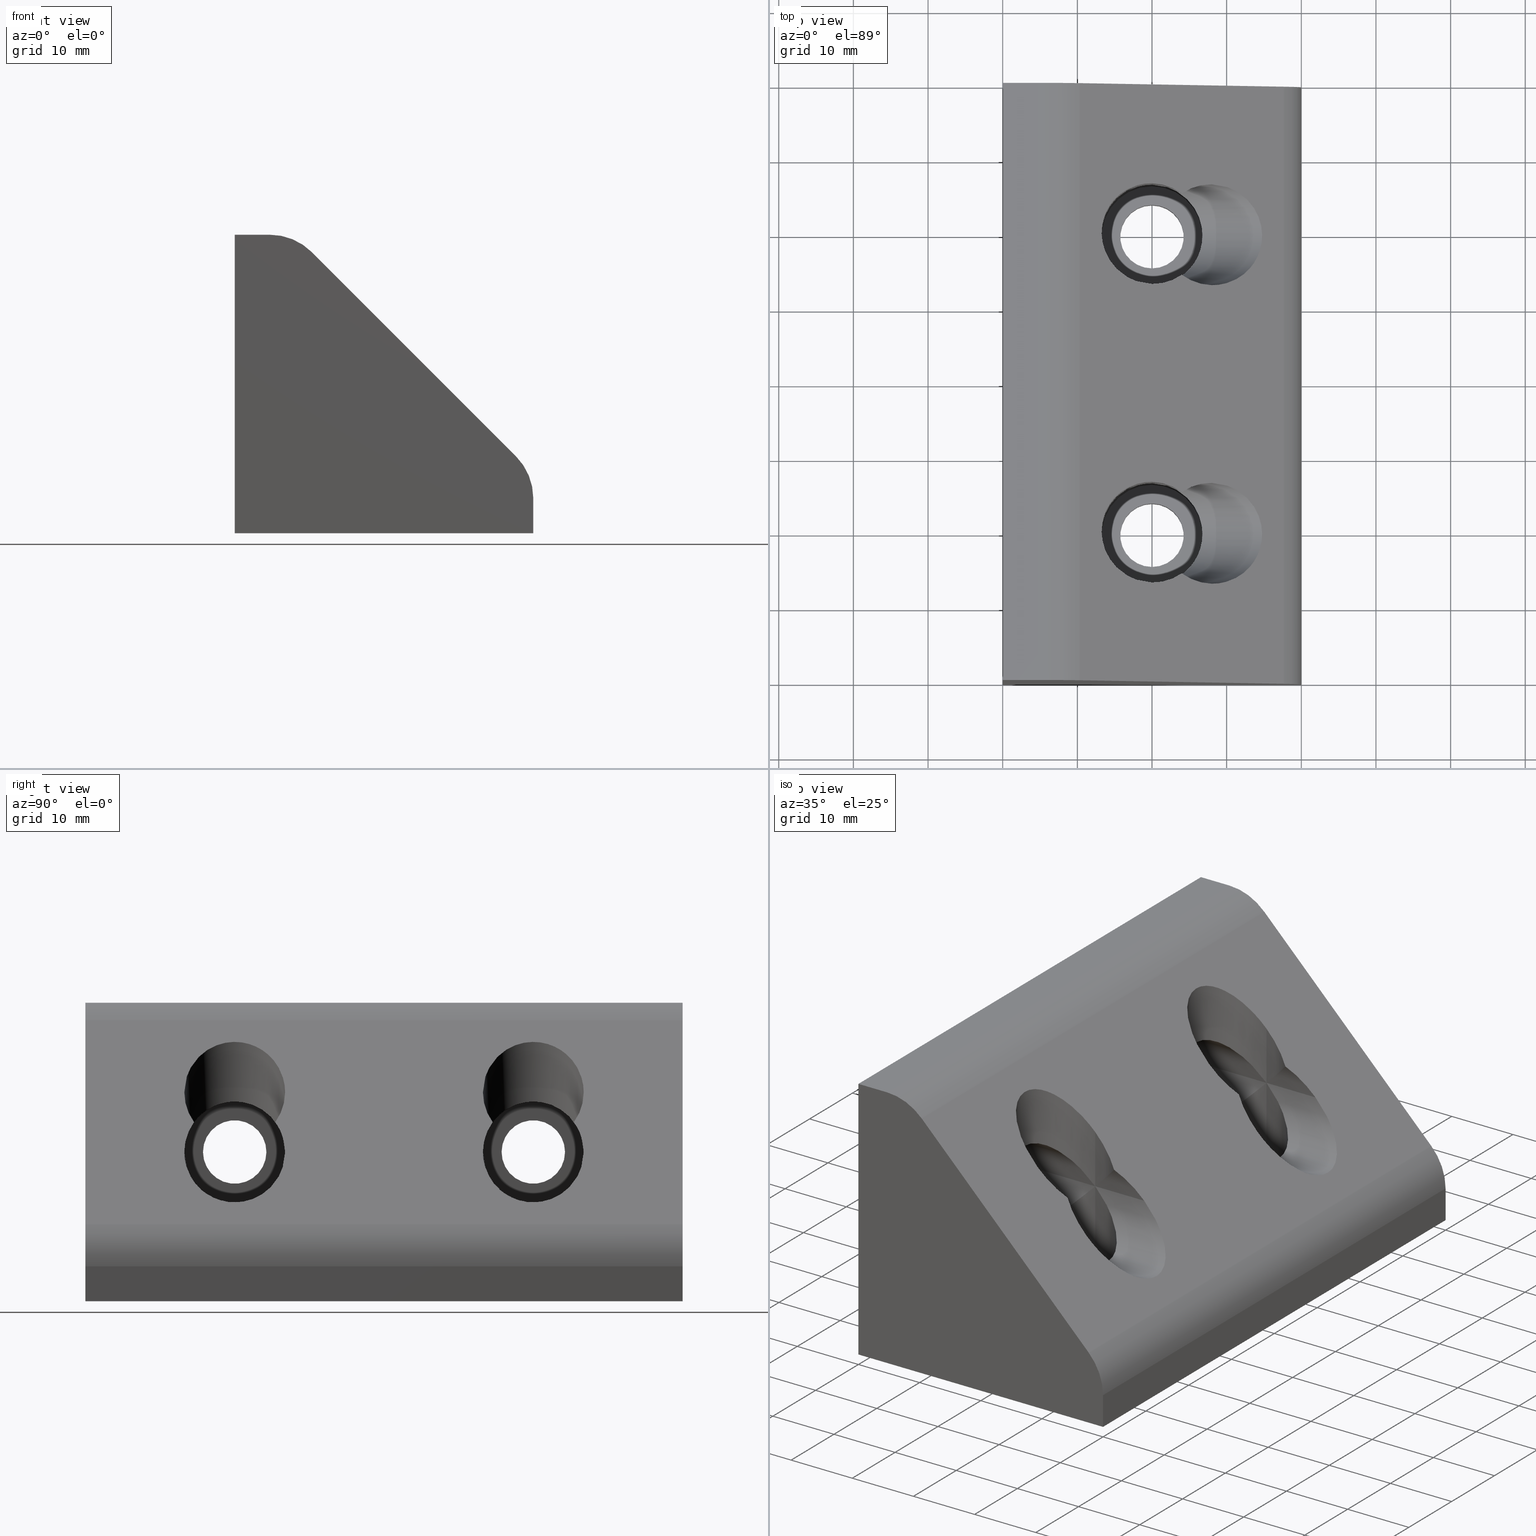
[diagram: canonical four-view strip — front | top / right | iso, engineering-drawing reading convention]
A machine part, canonical four-view strip (front | top / right | iso — engineering-drawing reading convention). The complete STEP part file that produces these views, byte-faithful:
ISO-10303-21;
HEADER;
/****************************************************************
 * Generated by software with PDE/Lib inside                    *
 * PDElib Version v4.4, created Mon 02/23/2004                  *
 * International Technegroup Inc. (www.iti-oh.com)              *
 ****************************************************************/
FILE_DESCRIPTION(('STEP AP203'),'2;1');
FILE_NAME('30.004.00.stp','2011-02-14T10:52:58',(''),(''),'2009.3.110','THINKDESIGN','');
FILE_SCHEMA(('CONFIG_CONTROL_DESIGN'));
ENDSEC;
DATA;
#2=CARTESIAN_POINT('',(20.0,20.0,20.000000009999997));
#3=DIRECTION('',(0.0,-6.123234E-017,-1.0));
#4=DIRECTION('',(-1.0,1.224647E-016,-7.498799E-033));
#5=AXIS2_PLACEMENT_3D('',#2,#3,#4);
#6=CYLINDRICAL_SURFACE('',#5,6.749999999999997);
#7=CARTESIAN_POINT('',(20.0,26.749999999999996,20.0));
#8=VERTEX_POINT('',#7);
#9=CARTESIAN_POINT('',(19.999999999999996,13.250000000000000,20.0));
#10=VERTEX_POINT('',#9);
#11=CARTESIAN_POINT('',(20.0,26.749999999999996,20.0));
#12=CARTESIAN_POINT('',(33.500000000000000,26.749999999999968,6.499999999999999));
#13=CARTESIAN_POINT('',(33.500000000000000,13.250000000000027,6.499999999999999));
#14=CARTESIAN_POINT('',(19.999999999999996,13.250000000000000,20.0));
#22=(BOUNDED_CURVE()B_SPLINE_CURVE(3,(#11,#12,#13,#14),.UNSPECIFIED.,.F.,.U.)B_SPLINE_CURVE_WITH_KNOTS((4,4),(1.570796326794897,4.712388980384691),.UNSPECIFIED.)CURVE()GEOMETRIC_REPRESENTATION_ITEM()RATIONAL_B_SPLINE_CURVE((1.0,0.333333333333333,0.333333333333333,1.0))REPRESENTATION_ITEM(''));
#23=EDGE_CURVE('',#8,#10,#22,.T.);
#24=ORIENTED_EDGE('',*,*,#23,.F.);
#25=CARTESIAN_POINT('',(20.0,26.749999999999996,4.999999999999998));
#26=VERTEX_POINT('',#25);
#27=CARTESIAN_POINT('',(20.0,26.749999999999996,20.0));
#28=DIRECTION('',(0.0,0.0,-1.0));
#29=VECTOR('',#28,15.0);
#30=LINE('',#27,#29);
#31=EDGE_CURVE('',#8,#26,#30,.T.);
#32=ORIENTED_EDGE('',*,*,#31,.T.);
#33=CARTESIAN_POINT('',(19.999999999999996,13.249999999999998,4.999999999999999));
#34=VERTEX_POINT('',#33);
#35=CARTESIAN_POINT('',(20.0,19.999999999999996,4.999999999999999));
#36=DIRECTION('',(0.0,6.123234E-017,1.0));
#37=DIRECTION('',(-1.224647E-016,-1.0,6.123234E-017));
#38=AXIS2_PLACEMENT_3D('',#35,#36,#37);
#39=CIRCLE('',#38,6.749999999999997);
#40=EDGE_CURVE('',#34,#26,#39,.T.);
#41=ORIENTED_EDGE('',*,*,#40,.F.);
#42=CARTESIAN_POINT('',(19.999999999999996,13.250000000000000,20.0));
#43=DIRECTION('',(0.0,0.0,-1.0));
#44=VECTOR('',#43,15.0);
#45=LINE('',#42,#44);
#46=EDGE_CURVE('',#10,#34,#45,.T.);
#47=ORIENTED_EDGE('',*,*,#46,.F.);
#48=EDGE_LOOP('',(#24,#32,#41,#47));
#49=FACE_OUTER_BOUND('',#48,.T.);
#50=ADVANCED_FACE('',(#49),#6,.F.);
#51=CARTESIAN_POINT('',(19.999999999999993,19.999999999999996,-9.999994E-009));
#52=DIRECTION('',(0.0,6.123234E-017,1.0));
#53=DIRECTION('',(-1.0,1.224647E-016,-7.498799E-033));
#54=AXIS2_PLACEMENT_3D('',#51,#52,#53);
#55=CYLINDRICAL_SURFACE('',#54,4.250000000000004);
#56=CARTESIAN_POINT('',(20.0,15.749999999999977,-9.644094E-016));
#57=VERTEX_POINT('',#56);
#58=CARTESIAN_POINT('',(20.0,24.249999999999996,-1.484884E-015));
#59=VERTEX_POINT('',#58);
#60=CARTESIAN_POINT('',(20.0,19.999999999999996,-1.224647E-015));
#61=DIRECTION('',(0.0,6.123234E-017,1.0));
#62=DIRECTION('',(1.224647E-016,1.0,-6.123234E-017));
#63=AXIS2_PLACEMENT_3D('',#60,#61,#62);
#64=CIRCLE('',#63,4.250000000000004);
#65=EDGE_CURVE('',#57,#59,#64,.T.);
#66=ORIENTED_EDGE('',*,*,#65,.F.);
#67=CARTESIAN_POINT('',(20.0,15.749999999999977,5.000000000000013));
#68=VERTEX_POINT('',#67);
#69=CARTESIAN_POINT('',(20.0,15.749999999999977,-9.644094E-016));
#70=DIRECTION('',(0.0,0.0,1.0));
#71=VECTOR('',#70,5.000000000000014);
#72=LINE('',#69,#71);
#73=EDGE_CURVE('',#57,#68,#72,.T.);
#74=ORIENTED_EDGE('',*,*,#73,.T.);
#75=CARTESIAN_POINT('',(20.0,24.249999999999996,5.000000000000012));
#76=VERTEX_POINT('',#75);
#77=CARTESIAN_POINT('',(20.0,19.999999999999996,5.000000000000013));
#78=DIRECTION('',(0.0,6.123234E-017,1.0));
#79=DIRECTION('',(-1.224647E-016,-1.0,6.123234E-017));
#80=AXIS2_PLACEMENT_3D('',#77,#78,#79);
#81=CIRCLE('',#80,4.250000000000004);
#82=EDGE_CURVE('',#68,#76,#81,.T.);
#83=ORIENTED_EDGE('',*,*,#82,.T.);
#84=CARTESIAN_POINT('',(20.0,24.249999999999996,-1.484884E-015));
#85=DIRECTION('',(0.0,0.0,1.0));
#86=VECTOR('',#85,5.000000000000014);
#87=LINE('',#84,#86);
#88=EDGE_CURVE('',#59,#76,#87,.T.);
#89=ORIENTED_EDGE('',*,*,#88,.F.);
#90=EDGE_LOOP('',(#66,#74,#83,#89));
#91=FACE_OUTER_BOUND('',#90,.T.);
#92=ADVANCED_FACE('',(#91),#55,.F.);
#93=CARTESIAN_POINT('',(19.999999999999993,-20.000000000000007,20.000000010000015));
#94=DIRECTION('',(0.0,-6.123234E-017,-1.0));
#95=DIRECTION('',(-1.0,1.224647E-016,-7.498799E-033));
#96=AXIS2_PLACEMENT_3D('',#93,#94,#95);
#97=CYLINDRICAL_SURFACE('',#96,6.749999999999997);
#98=CARTESIAN_POINT('',(19.999999999999996,-13.250000000000000,20.000000000000018));
#99=VERTEX_POINT('',#98);
#100=CARTESIAN_POINT('',(19.999999999999993,-26.750000000000011,20.000000000000018));
#101=VERTEX_POINT('',#100);
#102=CARTESIAN_POINT('',(19.999999999999996,-13.250000000000000,20.000000000000018));
#103=CARTESIAN_POINT('',(33.500000000000000,-13.250000000000005,6.500000000000015));
#104=CARTESIAN_POINT('',(33.500000000000000,-26.750000000000007,6.500000000000016));
#105=CARTESIAN_POINT('',(19.999999999999993,-26.750000000000011,20.000000000000018));
#113=(BOUNDED_CURVE()B_SPLINE_CURVE(3,(#102,#103,#104,#105),.UNSPECIFIED.,.F.,.U.)B_SPLINE_CURVE_WITH_KNOTS((4,4),(1.570796326794897,4.712388980384691),.UNSPECIFIED.)CURVE()GEOMETRIC_REPRESENTATION_ITEM()RATIONAL_B_SPLINE_CURVE((1.0,0.333333333333333,0.333333333333333,1.0))REPRESENTATION_ITEM(''));
#114=EDGE_CURVE('',#99,#101,#113,.T.);
#115=ORIENTED_EDGE('',*,*,#114,.F.);
#116=CARTESIAN_POINT('',(19.999999999999996,-13.250000000000002,5.000000000000001));
#117=VERTEX_POINT('',#116);
#118=CARTESIAN_POINT('',(19.999999999999996,-13.250000000000011,20.000000000000018));
#119=DIRECTION('',(0.0,0.0,-1.0));
#120=VECTOR('',#119,15.000000000000018);
#121=LINE('',#118,#120);
#122=EDGE_CURVE('',#99,#117,#121,.T.);
#123=ORIENTED_EDGE('',*,*,#122,.T.);
#124=CARTESIAN_POINT('',(19.999999999999993,-26.750000000000011,5.000000000000002));
#125=VERTEX_POINT('',#124);
#126=CARTESIAN_POINT('',(19.999999999999993,-20.000000000000011,5.000000000000001));
#127=DIRECTION('',(0.0,6.123234E-017,1.0));
#128=DIRECTION('',(-1.224647E-016,-1.0,6.123234E-017));
#129=AXIS2_PLACEMENT_3D('',#126,#127,#128);
#130=CIRCLE('',#129,6.749999999999997);
#131=EDGE_CURVE('',#125,#117,#130,.T.);
#132=ORIENTED_EDGE('',*,*,#131,.F.);
#133=CARTESIAN_POINT('',(19.999999999999993,-26.750000000000011,20.000000000000018));
#134=DIRECTION('',(0.0,0.0,-1.0));
#135=VECTOR('',#134,15.000000000000018);
#136=LINE('',#133,#135);
#137=EDGE_CURVE('',#101,#125,#136,.T.);
#138=ORIENTED_EDGE('',*,*,#137,.F.);
#139=EDGE_LOOP('',(#115,#123,#132,#138));
#140=FACE_OUTER_BOUND('',#139,.T.);
#141=ADVANCED_FACE('',(#140),#97,.F.);
#142=CARTESIAN_POINT('',(20.0,-20.000000000000011,-9.999994E-009));
#143=DIRECTION('',(0.0,6.123234E-017,1.0));
#144=DIRECTION('',(-1.0,1.224647E-016,-7.498799E-033));
#145=AXIS2_PLACEMENT_3D('',#142,#143,#144);
#146=CYLINDRICAL_SURFACE('',#145,4.250000000000000);
#147=CARTESIAN_POINT('',(19.999999999999993,-24.250000000000011,1.484884E-015));
#148=VERTEX_POINT('',#147);
#149=CARTESIAN_POINT('',(19.999999999999993,-15.750000000000009,9.644094E-016));
#150=VERTEX_POINT('',#149);
#151=CARTESIAN_POINT('',(19.999999999999993,-20.000000000000011,1.224647E-015));
#152=DIRECTION('',(0.0,6.123234E-017,1.0));
#153=DIRECTION('',(1.224647E-016,1.0,-6.123234E-017));
#154=AXIS2_PLACEMENT_3D('',#151,#152,#153);
#155=CIRCLE('',#154,4.250000000000000);
#156=EDGE_CURVE('',#148,#150,#155,.T.);
#157=ORIENTED_EDGE('',*,*,#156,.F.);
#158=CARTESIAN_POINT('',(19.999999999999993,-24.250000000000011,5.000000000000016));
#159=VERTEX_POINT('',#158);
#160=CARTESIAN_POINT('',(19.999999999999993,-24.250000000000011,1.484884E-015));
#161=DIRECTION('',(0.0,0.0,1.0));
#162=VECTOR('',#161,5.000000000000014);
#163=LINE('',#160,#162);
#164=EDGE_CURVE('',#148,#159,#163,.T.);
#165=ORIENTED_EDGE('',*,*,#164,.T.);
#166=CARTESIAN_POINT('',(19.999999999999993,-15.750000000000009,5.000000000000015));
#167=VERTEX_POINT('',#166);
#168=CARTESIAN_POINT('',(19.999999999999993,-20.000000000000011,5.000000000000015));
#169=DIRECTION('',(0.0,6.123234E-017,1.0));
#170=DIRECTION('',(-1.224647E-016,-1.0,6.123234E-017));
#171=AXIS2_PLACEMENT_3D('',#168,#169,#170);
#172=CIRCLE('',#171,4.250000000000000);
#173=EDGE_CURVE('',#159,#167,#172,.T.);
#174=ORIENTED_EDGE('',*,*,#173,.T.);
#175=CARTESIAN_POINT('',(19.999999999999993,-15.750000000000009,9.644094E-016));
#176=DIRECTION('',(0.0,0.0,1.0));
#177=VECTOR('',#176,5.000000000000014);
#178=LINE('',#175,#177);
#179=EDGE_CURVE('',#150,#167,#178,.T.);
#180=ORIENTED_EDGE('',*,*,#179,.F.);
#181=EDGE_LOOP('',(#157,#165,#174,#180));
#182=FACE_OUTER_BOUND('',#181,.T.);
#183=ADVANCED_FACE('',(#182),#146,.F.);
#184=CARTESIAN_POINT('',(-9.999994E-009,-20.0,20.000000000000014));
#185=DIRECTION('',(1.0,-1.224647E-016,7.498799E-033));
#186=DIRECTION('',(0.0,6.123234E-017,1.0));
#187=AXIS2_PLACEMENT_3D('',#184,#185,#186);
#188=CYLINDRICAL_SURFACE('',#187,4.250000000000000);
#189=CARTESIAN_POINT('',(-2.969768E-015,-24.250000000000000,20.000000000000018));
#190=VERTEX_POINT('',#189);
#191=CARTESIAN_POINT('',(-1.928819E-015,-15.749999999999998,20.000000000000018));
#192=VERTEX_POINT('',#191);
#193=CARTESIAN_POINT('',(-2.449294E-015,-20.0,20.000000000000018));
#194=DIRECTION('',(1.0,-1.224647E-016,7.498799E-033));
#195=DIRECTION('',(1.224647E-016,1.0,-6.123234E-017));
#196=AXIS2_PLACEMENT_3D('',#193,#194,#195);
#197=CIRCLE('',#196,4.250000000000000);
#198=EDGE_CURVE('',#190,#192,#197,.T.);
#199=ORIENTED_EDGE('',*,*,#198,.F.);
#200=CARTESIAN_POINT('',(4.999999999999997,-24.250000000000000,20.000000000000018));
#201=VERTEX_POINT('',#200);
#202=CARTESIAN_POINT('',(5.829452E-016,-24.250000000000000,20.000000000000018));
#203=DIRECTION('',(1.0,0.0,0.0));
#204=VECTOR('',#203,4.999999999999996);
#205=LINE('',#202,#204);
#206=EDGE_CURVE('',#190,#201,#205,.T.);
#207=ORIENTED_EDGE('',*,*,#206,.T.);
#208=CARTESIAN_POINT('',(4.999999999999998,-15.749999999999998,20.000000000000018));
#209=VERTEX_POINT('',#208);
#210=CARTESIAN_POINT('',(4.999999999999997,-20.0,20.000000000000018));
#211=DIRECTION('',(1.0,-1.224647E-016,7.498799E-033));
#212=DIRECTION('',(-1.224647E-016,-1.0,6.123234E-017));
#213=AXIS2_PLACEMENT_3D('',#210,#211,#212);
#214=CIRCLE('',#213,4.250000000000000);
#215=EDGE_CURVE('',#201,#209,#214,.T.);
#216=ORIENTED_EDGE('',*,*,#215,.T.);
#217=CARTESIAN_POINT('',(1.623895E-015,-15.749999999999998,20.000000000000018));
#218=DIRECTION('',(1.0,0.0,0.0));
#219=VECTOR('',#218,4.999999999999996);
#220=LINE('',#217,#219);
#221=EDGE_CURVE('',#192,#209,#220,.T.);
#222=ORIENTED_EDGE('',*,*,#221,.F.);
#223=EDGE_LOOP('',(#199,#207,#216,#222));
#224=FACE_OUTER_BOUND('',#223,.T.);
#225=ADVANCED_FACE('',(#224),#188,.F.);
#226=CARTESIAN_POINT('',(-0.000000010000008,20.0,20.0));
#227=DIRECTION('',(1.0,-1.224647E-016,7.498799E-033));
#228=DIRECTION('',(0.0,6.123234E-017,1.0));
#229=AXIS2_PLACEMENT_3D('',#226,#227,#228);
#230=CYLINDRICAL_SURFACE('',#229,4.250000000000004);
#231=CARTESIAN_POINT('',(-1.623895E-015,15.749999999999980,20.0));
#232=VERTEX_POINT('',#231);
#233=CARTESIAN_POINT('',(-5.829452E-016,24.250000000000000,20.0));
#234=VERTEX_POINT('',#233);
#235=CARTESIAN_POINT('',(-1.103420E-015,20.0,20.0));
#236=DIRECTION('',(1.0,-1.224647E-016,7.498799E-033));
#237=DIRECTION('',(1.224647E-016,1.0,-6.123234E-017));
#238=AXIS2_PLACEMENT_3D('',#235,#236,#237);
#239=CIRCLE('',#238,4.250000000000004);
#240=EDGE_CURVE('',#232,#234,#239,.T.);
#241=ORIENTED_EDGE('',*,*,#240,.F.);
#242=CARTESIAN_POINT('',(5.000000000000002,15.749999999999980,20.0));
#243=VERTEX_POINT('',#242);
#244=CARTESIAN_POINT('',(-8.729322E-015,15.749999999999980,20.0));
#245=DIRECTION('',(1.0,0.0,0.0));
#246=VECTOR('',#245,5.000000000000011);
#247=LINE('',#244,#246);
#248=EDGE_CURVE('',#232,#243,#247,.T.);
#249=ORIENTED_EDGE('',*,*,#248,.T.);
#250=CARTESIAN_POINT('',(5.000000000000003,24.250000000000000,20.0));
#251=VERTEX_POINT('',#250);
#252=CARTESIAN_POINT('',(5.000000000000003,20.0,20.0));
#253=DIRECTION('',(1.0,-1.224647E-016,7.498799E-033));
#254=DIRECTION('',(-1.224647E-016,-1.0,6.123234E-017));
#255=AXIS2_PLACEMENT_3D('',#252,#253,#254);
#256=CIRCLE('',#255,4.250000000000004);
#257=EDGE_CURVE('',#243,#251,#256,.T.);
#258=ORIENTED_EDGE('',*,*,#257,.T.);
#259=CARTESIAN_POINT('',(-7.688373E-015,24.250000000000000,20.0));
#260=DIRECTION('',(1.0,0.0,0.0));
#261=VECTOR('',#260,5.000000000000011);
#262=LINE('',#259,#261);
#263=EDGE_CURVE('',#234,#251,#262,.T.);
#264=ORIENTED_EDGE('',*,*,#263,.F.);
#265=EDGE_LOOP('',(#241,#249,#258,#264));
#266=FACE_OUTER_BOUND('',#265,.T.);
#267=ADVANCED_FACE('',(#266),#230,.F.);
#268=CARTESIAN_POINT('',(20.000000009999994,-19.999999999999996,20.000000000000018));
#269=DIRECTION('',(-1.0,1.224647E-016,-7.498799E-033));
#270=DIRECTION('',(0.0,-6.123234E-017,-1.0));
#271=AXIS2_PLACEMENT_3D('',#268,#269,#270);
#272=CYLINDRICAL_SURFACE('',#271,6.749999999999997);
#273=CARTESIAN_POINT('',(19.999999999999996,-13.250000000000000,20.000000000000018));
#274=CARTESIAN_POINT('',(6.500000000000002,-13.249999999999989,33.500000000000007));
#275=CARTESIAN_POINT('',(6.500000000000000,-26.749999999999996,33.500000000000007));
#276=CARTESIAN_POINT('',(19.999999999999993,-26.750000000000011,20.000000000000018));
#284=(BOUNDED_CURVE()B_SPLINE_CURVE(3,(#273,#274,#275,#276),.UNSPECIFIED.,.F.,.U.)B_SPLINE_CURVE_WITH_KNOTS((4,4),(4.712388980384691,7.853981633974483),.UNSPECIFIED.)CURVE()GEOMETRIC_REPRESENTATION_ITEM()RATIONAL_B_SPLINE_CURVE((1.0,0.333333333333333,0.333333333333333,1.0))REPRESENTATION_ITEM(''));
#285=EDGE_CURVE('',#99,#101,#284,.T.);
#286=ORIENTED_EDGE('',*,*,#285,.T.);
#287=CARTESIAN_POINT('',(4.999999999999996,-26.750000000000000,20.000000000000018));
#288=VERTEX_POINT('',#287);
#289=CARTESIAN_POINT('',(19.999999999999993,-26.749999999999996,20.000000000000018));
#290=DIRECTION('',(-1.0,0.0,0.0));
#291=VECTOR('',#290,14.999999999999996);
#292=LINE('',#289,#291);
#293=EDGE_CURVE('',#101,#288,#292,.T.);
#294=ORIENTED_EDGE('',*,*,#293,.T.);
#295=CARTESIAN_POINT('',(4.999999999999998,-13.249999999999998,20.000000000000018));
#296=VERTEX_POINT('',#295);
#297=CARTESIAN_POINT('',(4.999999999999997,-20.0,20.000000000000018));
#298=DIRECTION('',(1.0,-1.224647E-016,7.498799E-033));
#299=DIRECTION('',(1.224647E-016,1.0,-6.123234E-017));
#300=AXIS2_PLACEMENT_3D('',#297,#298,#299);
#301=CIRCLE('',#300,6.749999999999997);
#302=EDGE_CURVE('',#296,#288,#301,.T.);
#303=ORIENTED_EDGE('',*,*,#302,.F.);
#304=CARTESIAN_POINT('',(19.999999999999996,-13.250000000000000,20.000000000000018));
#305=DIRECTION('',(-1.0,0.0,0.0));
#306=VECTOR('',#305,14.999999999999996);
#307=LINE('',#304,#306);
#308=EDGE_CURVE('',#99,#296,#307,.T.);
#309=ORIENTED_EDGE('',*,*,#308,.F.);
#310=EDGE_LOOP('',(#286,#294,#303,#309));
#311=FACE_OUTER_BOUND('',#310,.T.);
#312=ADVANCED_FACE('',(#311),#272,.F.);
#313=CARTESIAN_POINT('',(20.000000009999994,20.0,20.0));
#314=DIRECTION('',(-1.0,1.224647E-016,-7.498799E-033));
#315=DIRECTION('',(0.0,-6.123234E-017,-1.0));
#316=AXIS2_PLACEMENT_3D('',#313,#314,#315);
#317=CYLINDRICAL_SURFACE('',#316,6.750000000000005);
#318=CARTESIAN_POINT('',(20.0,26.749999999999996,20.0));
#319=CARTESIAN_POINT('',(6.500000000000007,26.749999999999975,33.500000000000000));
#320=CARTESIAN_POINT('',(6.500000000000005,13.250000000000032,33.500000000000000));
#321=CARTESIAN_POINT('',(19.999999999999996,13.250000000000000,20.0));
#329=(BOUNDED_CURVE()B_SPLINE_CURVE(3,(#318,#319,#320,#321),.UNSPECIFIED.,.F.,.U.)B_SPLINE_CURVE_WITH_KNOTS((4,4),(4.712388980384691,7.853981633974483),.UNSPECIFIED.)CURVE()GEOMETRIC_REPRESENTATION_ITEM()RATIONAL_B_SPLINE_CURVE((1.0,0.333333333333333,0.333333333333333,1.0))REPRESENTATION_ITEM(''));
#330=EDGE_CURVE('',#8,#10,#329,.T.);
#331=ORIENTED_EDGE('',*,*,#330,.T.);
#332=CARTESIAN_POINT('',(5.000000000000002,13.250000000000002,20.0));
#333=VERTEX_POINT('',#332);
#334=CARTESIAN_POINT('',(19.999999999999996,13.250000000000000,20.0));
#335=DIRECTION('',(-1.0,0.0,0.0));
#336=VECTOR('',#335,14.999999999999996);
#337=LINE('',#334,#336);
#338=EDGE_CURVE('',#10,#333,#337,.T.);
#339=ORIENTED_EDGE('',*,*,#338,.T.);
#340=CARTESIAN_POINT('',(5.000000000000004,26.750000000000000,20.0));
#341=VERTEX_POINT('',#340);
#342=CARTESIAN_POINT('',(5.000000000000003,20.0,20.0));
#343=DIRECTION('',(1.0,-1.224647E-016,7.498799E-033));
#344=DIRECTION('',(1.224647E-016,1.0,-6.123234E-017));
#345=AXIS2_PLACEMENT_3D('',#342,#343,#344);
#346=CIRCLE('',#345,6.750000000000005);
#347=EDGE_CURVE('',#341,#333,#346,.T.);
#348=ORIENTED_EDGE('',*,*,#347,.F.);
#349=CARTESIAN_POINT('',(20.0,26.749999999999996,20.0));
#350=DIRECTION('',(-1.0,0.0,0.0));
#351=VECTOR('',#350,14.999999999999996);
#352=LINE('',#349,#351);
#353=EDGE_CURVE('',#8,#341,#352,.T.);
#354=ORIENTED_EDGE('',*,*,#353,.F.);
#355=EDGE_LOOP('',(#331,#339,#348,#354));
#356=FACE_OUTER_BOUND('',#355,.T.);
#357=ADVANCED_FACE('',(#356),#317,.F.);
#358=CARTESIAN_POINT('',(20.0,20.0,28.000000010000008));
#359=DIRECTION('',(0.0,-6.123234E-017,-1.0));
#360=DIRECTION('',(-1.224647E-016,-1.0,6.123234E-017));
#361=AXIS2_PLACEMENT_3D('',#358,#359,#360);
#362=CYLINDRICAL_SURFACE('',#361,6.749999999999997);
#363=CARTESIAN_POINT('',(20.0,26.749999999999996,28.000000000000011));
#364=VERTEX_POINT('',#363);
#365=CARTESIAN_POINT('',(24.0,25.437140792732887,24.000000000000007));
#366=VERTEX_POINT('',#365);
#367=CARTESIAN_POINT('',(20.0,26.749999999999996,28.000000000000011));
#368=CARTESIAN_POINT('',(21.451571303647832,26.749999999999968,26.548428696352186));
#369=CARTESIAN_POINT('',(22.830755918722367,26.297331194894536,25.169244081277650));
#370=CARTESIAN_POINT('',(24.0,25.437140792732887,24.000000000000007));
#378=(BOUNDED_CURVE()B_SPLINE_CURVE(3,(#367,#368,#369,#370),.UNSPECIFIED.,.F.,.U.)B_SPLINE_CURVE_WITH_KNOTS((4,4),(4.712388980384691,5.346662628507185),.UNSPECIFIED.)CURVE()GEOMETRIC_REPRESENTATION_ITEM()RATIONAL_B_SPLINE_CURVE((1.0,0.966754790301429,0.966754790301429,1.0))REPRESENTATION_ITEM(''));
#379=EDGE_CURVE('',#364,#366,#378,.T.);
#380=ORIENTED_EDGE('',*,*,#379,.F.);
#381=CARTESIAN_POINT('',(20.0,26.749999999999996,28.000000000000011));
#382=DIRECTION('',(0.0,0.0,-1.0));
#383=VECTOR('',#382,8.000000000000011);
#384=LINE('',#381,#383);
#385=EDGE_CURVE('',#364,#8,#384,.T.);
#386=ORIENTED_EDGE('',*,*,#385,.T.);
#387=CARTESIAN_POINT('',(24.0,25.437140792732887,24.000000000000007));
#388=CARTESIAN_POINT('',(22.830755918722367,26.297331194894536,22.830755918722371));
#389=CARTESIAN_POINT('',(21.451571303647832,26.749999999999968,21.451571303647839));
#390=CARTESIAN_POINT('',(20.0,26.749999999999996,20.0));
#398=(BOUNDED_CURVE()B_SPLINE_CURVE(3,(#387,#388,#389,#390),.UNSPECIFIED.,.F.,.U.)B_SPLINE_CURVE_WITH_KNOTS((4,4),(4.078115332262193,4.712388980384691),.UNSPECIFIED.)CURVE()GEOMETRIC_REPRESENTATION_ITEM()RATIONAL_B_SPLINE_CURVE((1.0,0.966754790301428,0.966754790301428,1.0))REPRESENTATION_ITEM(''));
#399=EDGE_CURVE('',#366,#8,#398,.T.);
#400=ORIENTED_EDGE('',*,*,#399,.F.);
#401=EDGE_LOOP('',(#380,#386,#400));
#402=FACE_OUTER_BOUND('',#401,.T.);
#403=ADVANCED_FACE('',(#402),#362,.F.);
#404=CARTESIAN_POINT('',(19.999999999999993,20.0,34.750008955876353));
#405=DIRECTION('',(0.0,-6.123234E-017,-1.0));
#406=DIRECTION('',(1.0,-1.224647E-016,7.498799E-033));
#407=AXIS2_PLACEMENT_3D('',#404,#405,#406);
#408=CYLINDRICAL_SURFACE('',#407,6.749999999999997);
#409=ORIENTED_EDGE('',*,*,#385,.F.);
#410=CARTESIAN_POINT('',(19.999999999999996,13.250000000000000,28.000000000000011));
#411=VERTEX_POINT('',#410);
#412=CARTESIAN_POINT('',(19.999999999999996,13.250000000000000,28.000000000000011));
#413=CARTESIAN_POINT('',(6.500000000000005,13.250000000000032,41.500000000000021));
#414=CARTESIAN_POINT('',(6.500000000000007,26.750000000000007,41.500000000000021));
#415=CARTESIAN_POINT('',(20.0,26.749999999999996,28.000000000000011));
#423=(BOUNDED_CURVE()B_SPLINE_CURVE(3,(#412,#413,#414,#415),.UNSPECIFIED.,.F.,.U.)B_SPLINE_CURVE_WITH_KNOTS((4,4),(1.570796326794897,4.712388980384691),.UNSPECIFIED.)CURVE()GEOMETRIC_REPRESENTATION_ITEM()RATIONAL_B_SPLINE_CURVE((1.0,0.333333333333333,0.333333333333333,1.0))REPRESENTATION_ITEM(''));
#424=EDGE_CURVE('',#411,#364,#423,.T.);
#425=ORIENTED_EDGE('',*,*,#424,.F.);
#426=CARTESIAN_POINT('',(19.999999999999996,13.250000000000000,28.000000000000011));
#427=DIRECTION('',(0.0,0.0,-1.0));
#428=VECTOR('',#427,8.000000000000011);
#429=LINE('',#426,#428);
#430=EDGE_CURVE('',#411,#10,#429,.T.);
#431=ORIENTED_EDGE('',*,*,#430,.T.);
#432=ORIENTED_EDGE('',*,*,#330,.F.);
#433=EDGE_LOOP('',(#409,#425,#431,#432));
#434=FACE_OUTER_BOUND('',#433,.T.);
#435=ADVANCED_FACE('',(#434),#408,.F.);
#436=CARTESIAN_POINT('',(19.999999999999993,-20.000000000000007,28.000000010000015));
#437=DIRECTION('',(0.0,-6.123234E-017,-1.0));
#438=DIRECTION('',(-1.224647E-016,-1.0,6.123234E-017));
#439=AXIS2_PLACEMENT_3D('',#436,#437,#438);
#440=CYLINDRICAL_SURFACE('',#439,6.749999999999997);
#441=CARTESIAN_POINT('',(19.999999999999996,-13.250000000000011,28.000000000000021));
#442=VERTEX_POINT('',#441);
#443=CARTESIAN_POINT('',(23.999999999999993,-14.562859207267122,24.000000000000011));
#444=VERTEX_POINT('',#443);
#445=CARTESIAN_POINT('',(19.999999999999996,-13.250000000000011,28.000000000000021));
#446=CARTESIAN_POINT('',(21.451571303647828,-13.250000000000011,26.548428696352186));
#447=CARTESIAN_POINT('',(22.830755918722357,-13.702668805105437,25.169244081277661));
#448=CARTESIAN_POINT('',(23.999999999999993,-14.562859207267122,24.000000000000011));
#456=(BOUNDED_CURVE()B_SPLINE_CURVE(3,(#445,#446,#447,#448),.UNSPECIFIED.,.F.,.U.)B_SPLINE_CURVE_WITH_KNOTS((4,4),(4.712388980384691,5.346662628507187),.UNSPECIFIED.)CURVE()GEOMETRIC_REPRESENTATION_ITEM()RATIONAL_B_SPLINE_CURVE((1.0,0.966754790301428,0.966754790301428,1.0))REPRESENTATION_ITEM(''));
#457=EDGE_CURVE('',#442,#444,#456,.T.);
#458=ORIENTED_EDGE('',*,*,#457,.F.);
#459=CARTESIAN_POINT('',(19.999999999999996,-13.250000000000011,28.000000000000021));
#460=DIRECTION('',(0.0,0.0,-1.0));
#461=VECTOR('',#460,8.0);
#462=LINE('',#459,#461);
#463=EDGE_CURVE('',#442,#99,#462,.T.);
#464=ORIENTED_EDGE('',*,*,#463,.T.);
#465=CARTESIAN_POINT('',(23.999999999999993,-14.562859207267122,24.000000000000011));
#466=CARTESIAN_POINT('',(22.830755918722364,-13.702668805105437,22.830755918722375));
#467=CARTESIAN_POINT('',(21.451571303647828,-13.250000000000000,21.451571303647846));
#468=CARTESIAN_POINT('',(19.999999999999996,-13.250000000000000,20.000000000000018));
#476=(BOUNDED_CURVE()B_SPLINE_CURVE(3,(#465,#466,#467,#468),.UNSPECIFIED.,.F.,.U.)B_SPLINE_CURVE_WITH_KNOTS((4,4),(4.078115332262193,4.712388980384691),.UNSPECIFIED.)CURVE()GEOMETRIC_REPRESENTATION_ITEM()RATIONAL_B_SPLINE_CURVE((1.0,0.966754790301428,0.966754790301428,1.0))REPRESENTATION_ITEM(''));
#477=EDGE_CURVE('',#444,#99,#476,.T.);
#478=ORIENTED_EDGE('',*,*,#477,.F.);
#479=EDGE_LOOP('',(#458,#464,#478));
#480=FACE_OUTER_BOUND('',#479,.T.);
#481=ADVANCED_FACE('',(#480),#440,.F.);
#482=CARTESIAN_POINT('',(20.0,-20.000000000000007,34.750008955876361));
#483=DIRECTION('',(0.0,-6.123234E-017,-1.0));
#484=DIRECTION('',(1.0,-1.224647E-016,7.498799E-033));
#485=AXIS2_PLACEMENT_3D('',#482,#483,#484);
#486=CYLINDRICAL_SURFACE('',#485,6.749999999999997);
#487=ORIENTED_EDGE('',*,*,#463,.F.);
#488=CARTESIAN_POINT('',(19.999999999999993,-26.750000000000011,28.000000000000021));
#489=VERTEX_POINT('',#488);
#490=CARTESIAN_POINT('',(19.999999999999993,-26.750000000000011,28.000000000000021));
#491=CARTESIAN_POINT('',(6.500000000000000,-26.750000000000007,41.500000000000028));
#492=CARTESIAN_POINT('',(6.500000000000002,-13.250000000000000,41.500000000000028));
#493=CARTESIAN_POINT('',(19.999999999999996,-13.250000000000011,28.000000000000021));
#501=(BOUNDED_CURVE()B_SPLINE_CURVE(3,(#490,#491,#492,#493),.UNSPECIFIED.,.F.,.U.)B_SPLINE_CURVE_WITH_KNOTS((4,4),(1.570796326794897,4.712388980384691),.UNSPECIFIED.)CURVE()GEOMETRIC_REPRESENTATION_ITEM()RATIONAL_B_SPLINE_CURVE((1.0,0.333333333333333,0.333333333333333,1.0))REPRESENTATION_ITEM(''));
#502=EDGE_CURVE('',#489,#442,#501,.T.);
#503=ORIENTED_EDGE('',*,*,#502,.F.);
#504=CARTESIAN_POINT('',(19.999999999999993,-26.750000000000011,28.000000000000021));
#505=DIRECTION('',(0.0,0.0,-1.0));
#506=VECTOR('',#505,8.0);
#507=LINE('',#504,#506);
#508=EDGE_CURVE('',#489,#101,#507,.T.);
#509=ORIENTED_EDGE('',*,*,#508,.T.);
#510=ORIENTED_EDGE('',*,*,#285,.F.);
#511=EDGE_LOOP('',(#487,#503,#509,#510));
#512=FACE_OUTER_BOUND('',#511,.T.);
#513=ADVANCED_FACE('',(#512),#486,.F.);
#514=CARTESIAN_POINT('',(28.000000010000001,-20.000000000000004,20.000000000000018));
#515=DIRECTION('',(-1.0,1.224647E-016,-7.498799E-033));
#516=DIRECTION('',(1.224647E-016,1.0,-6.123234E-017));
#517=AXIS2_PLACEMENT_3D('',#514,#515,#516);
#518=CYLINDRICAL_SURFACE('',#517,6.749999999999997);
#519=CARTESIAN_POINT('',(28.0,-26.749999999999996,20.000000000000018));
#520=VERTEX_POINT('',#519);
#521=CARTESIAN_POINT('',(23.999999999999993,-25.437140792732894,24.000000000000011));
#522=VERTEX_POINT('',#521);
#523=CARTESIAN_POINT('',(28.0,-26.749999999999996,20.000000000000018));
#524=CARTESIAN_POINT('',(26.548428696352197,-26.749999999999996,21.451571303647846));
#525=CARTESIAN_POINT('',(25.169244081277640,-26.297331194894568,22.830755918722375));
#526=CARTESIAN_POINT('',(23.999999999999993,-25.437140792732894,24.000000000000011));
#534=(BOUNDED_CURVE()B_SPLINE_CURVE(3,(#523,#524,#525,#526),.UNSPECIFIED.,.F.,.U.)B_SPLINE_CURVE_WITH_KNOTS((4,4),(4.712388980384691,5.346662628507187),.UNSPECIFIED.)CURVE()GEOMETRIC_REPRESENTATION_ITEM()RATIONAL_B_SPLINE_CURVE((1.0,0.966754790301428,0.966754790301428,1.0))REPRESENTATION_ITEM(''));
#535=EDGE_CURVE('',#520,#522,#534,.T.);
#536=ORIENTED_EDGE('',*,*,#535,.F.);
#537=CARTESIAN_POINT('',(28.0,-26.749999999999996,20.000000000000018));
#538=DIRECTION('',(-1.0,0.0,0.0));
#539=VECTOR('',#538,8.000000000000007);
#540=LINE('',#537,#539);
#541=EDGE_CURVE('',#520,#101,#540,.T.);
#542=ORIENTED_EDGE('',*,*,#541,.T.);
#543=CARTESIAN_POINT('',(19.999999999999993,-26.750000000000011,20.000000000000018));
#544=CARTESIAN_POINT('',(21.451571303647825,-26.750000000000011,21.451571303647846));
#545=CARTESIAN_POINT('',(22.830755918722360,-26.297331194894568,22.830755918722375));
#546=CARTESIAN_POINT('',(23.999999999999993,-25.437140792732894,24.000000000000011));
#554=(BOUNDED_CURVE()B_SPLINE_CURVE(3,(#543,#544,#545,#546),.UNSPECIFIED.,.F.,.U.)B_SPLINE_CURVE_WITH_KNOTS((4,4),(1.570796326794897,2.205069974917393),.UNSPECIFIED.)CURVE()GEOMETRIC_REPRESENTATION_ITEM()RATIONAL_B_SPLINE_CURVE((1.0,0.966754790301428,0.966754790301428,1.0))REPRESENTATION_ITEM(''));
#555=EDGE_CURVE('',#101,#522,#554,.T.);
#556=ORIENTED_EDGE('',*,*,#555,.T.);
#557=EDGE_LOOP('',(#536,#542,#556));
#558=FACE_OUTER_BOUND('',#557,.T.);
#559=ADVANCED_FACE('',(#558),#518,.F.);
#560=CARTESIAN_POINT('',(34.750008955876339,-20.000000000000004,20.000000000000014));
#561=DIRECTION('',(-1.0,1.224647E-016,-7.498799E-033));
#562=DIRECTION('',(0.0,6.123234E-017,1.0));
#563=AXIS2_PLACEMENT_3D('',#560,#561,#562);
#564=CYLINDRICAL_SURFACE('',#563,6.749999999999997);
#565=ORIENTED_EDGE('',*,*,#541,.F.);
#566=CARTESIAN_POINT('',(28.000000000000004,-13.250000000000002,20.000000000000018));
#567=VERTEX_POINT('',#566);
#568=CARTESIAN_POINT('',(28.000000000000004,-13.250000000000002,20.000000000000018));
#569=CARTESIAN_POINT('',(41.500000000000014,-13.249999999999995,6.500000000000015));
#570=CARTESIAN_POINT('',(41.500000000000014,-26.749999999999996,6.500000000000016));
#571=CARTESIAN_POINT('',(28.0,-26.749999999999996,20.000000000000018));
#579=(BOUNDED_CURVE()B_SPLINE_CURVE(3,(#568,#569,#570,#571),.UNSPECIFIED.,.F.,.U.)B_SPLINE_CURVE_WITH_KNOTS((4,4),(1.570796326794897,4.712388980384691),.UNSPECIFIED.)CURVE()GEOMETRIC_REPRESENTATION_ITEM()RATIONAL_B_SPLINE_CURVE((1.0,0.333333333333333,0.333333333333333,1.0))REPRESENTATION_ITEM(''));
#580=EDGE_CURVE('',#567,#520,#579,.T.);
#581=ORIENTED_EDGE('',*,*,#580,.F.);
#582=CARTESIAN_POINT('',(28.000000000000004,-13.250000000000002,20.000000000000018));
#583=DIRECTION('',(-1.0,0.0,0.0));
#584=VECTOR('',#583,8.000000000000007);
#585=LINE('',#582,#584);
#586=EDGE_CURVE('',#567,#99,#585,.T.);
#587=ORIENTED_EDGE('',*,*,#586,.T.);
#588=ORIENTED_EDGE('',*,*,#114,.T.);
#589=EDGE_LOOP('',(#565,#581,#587,#588));
#590=FACE_OUTER_BOUND('',#589,.T.);
#591=ADVANCED_FACE('',(#590),#564,.F.);
#592=CARTESIAN_POINT('',(28.000000010000001,19.999999999999996,20.0));
#593=DIRECTION('',(-1.0,1.224647E-016,-7.498799E-033));
#594=DIRECTION('',(1.224647E-016,1.0,-6.123234E-017));
#595=AXIS2_PLACEMENT_3D('',#592,#593,#594);
#596=CYLINDRICAL_SURFACE('',#595,6.750000000000005);
#597=CARTESIAN_POINT('',(28.000000000000004,13.249999999999998,20.0));
#598=VERTEX_POINT('',#597);
#599=CARTESIAN_POINT('',(24.0,14.562859207267115,24.000000000000007));
#600=VERTEX_POINT('',#599);
#601=CARTESIAN_POINT('',(28.000000000000004,13.249999999999998,20.0));
#602=CARTESIAN_POINT('',(26.548428696352200,13.249999999999998,21.451571303647839));
#603=CARTESIAN_POINT('',(25.169244081277643,13.702668805105437,22.830755918722367));
#604=CARTESIAN_POINT('',(24.0,14.562859207267115,24.000000000000007));
#612=(BOUNDED_CURVE()B_SPLINE_CURVE(3,(#601,#602,#603,#604),.UNSPECIFIED.,.F.,.U.)B_SPLINE_CURVE_WITH_KNOTS((4,4),(4.712388980384691,5.346662628507187),.UNSPECIFIED.)CURVE()GEOMETRIC_REPRESENTATION_ITEM()RATIONAL_B_SPLINE_CURVE((1.0,0.966754790301428,0.966754790301428,1.0))REPRESENTATION_ITEM(''));
#613=EDGE_CURVE('',#598,#600,#612,.T.);
#614=ORIENTED_EDGE('',*,*,#613,.F.);
#615=CARTESIAN_POINT('',(28.000000000000004,13.249999999999998,20.0));
#616=DIRECTION('',(-1.0,0.0,0.0));
#617=VECTOR('',#616,8.000000000000007);
#618=LINE('',#615,#617);
#619=EDGE_CURVE('',#598,#10,#618,.T.);
#620=ORIENTED_EDGE('',*,*,#619,.T.);
#621=CARTESIAN_POINT('',(19.999999999999996,13.250000000000000,20.0));
#622=CARTESIAN_POINT('',(21.451571303647828,13.250000000000000,21.451571303647839));
#623=CARTESIAN_POINT('',(22.830755918722364,13.702668805105437,22.830755918722367));
#624=CARTESIAN_POINT('',(24.0,14.562859207267115,24.000000000000007));
#632=(BOUNDED_CURVE()B_SPLINE_CURVE(3,(#621,#622,#623,#624),.UNSPECIFIED.,.F.,.U.)B_SPLINE_CURVE_WITH_KNOTS((4,4),(1.570796326794897,2.205069974917392),.UNSPECIFIED.)CURVE()GEOMETRIC_REPRESENTATION_ITEM()RATIONAL_B_SPLINE_CURVE((1.0,0.966754790301428,0.966754790301428,1.0))REPRESENTATION_ITEM(''));
#633=EDGE_CURVE('',#10,#600,#632,.T.);
#634=ORIENTED_EDGE('',*,*,#633,.T.);
#635=EDGE_LOOP('',(#614,#620,#634));
#636=FACE_OUTER_BOUND('',#635,.T.);
#637=ADVANCED_FACE('',(#636),#596,.F.);
#638=CARTESIAN_POINT('',(34.750008955876339,19.999999999999996,20.0));
#639=DIRECTION('',(-1.0,1.224647E-016,-7.498799E-033));
#640=DIRECTION('',(0.0,6.123234E-017,1.0));
#641=AXIS2_PLACEMENT_3D('',#638,#639,#640);
#642=CYLINDRICAL_SURFACE('',#641,6.750000000000005);
#643=ORIENTED_EDGE('',*,*,#619,.F.);
#644=CARTESIAN_POINT('',(28.000000000000007,26.749999999999996,20.0));
#645=VERTEX_POINT('',#644);
#646=CARTESIAN_POINT('',(28.000000000000007,26.749999999999996,20.0));
#647=CARTESIAN_POINT('',(41.500000000000014,26.749999999999996,6.499999999999999));
#648=CARTESIAN_POINT('',(41.500000000000014,13.250000000000023,6.499999999999999));
#649=CARTESIAN_POINT('',(28.000000000000004,13.249999999999998,20.0));
#657=(BOUNDED_CURVE()B_SPLINE_CURVE(3,(#646,#647,#648,#649),.UNSPECIFIED.,.F.,.U.)B_SPLINE_CURVE_WITH_KNOTS((4,4),(1.570796326794897,4.712388980384691),.UNSPECIFIED.)CURVE()GEOMETRIC_REPRESENTATION_ITEM()RATIONAL_B_SPLINE_CURVE((1.0,0.333333333333333,0.333333333333333,1.0))REPRESENTATION_ITEM(''));
#658=EDGE_CURVE('',#645,#598,#657,.T.);
#659=ORIENTED_EDGE('',*,*,#658,.F.);
#660=CARTESIAN_POINT('',(28.000000000000007,26.749999999999996,20.0));
#661=DIRECTION('',(-1.0,0.0,0.0));
#662=VECTOR('',#661,8.000000000000007);
#663=LINE('',#660,#662);
#664=EDGE_CURVE('',#645,#8,#663,.T.);
#665=ORIENTED_EDGE('',*,*,#664,.T.);
#666=ORIENTED_EDGE('',*,*,#23,.T.);
#667=EDGE_LOOP('',(#643,#659,#665,#666));
#668=FACE_OUTER_BOUND('',#667,.T.);
#669=ADVANCED_FACE('',(#668),#642,.F.);
#670=CARTESIAN_POINT('',(40.000000000000021,43.999999999999993,-0.234314575050763));
#671=DIRECTION('',(-1.0,0.0,0.0));
#672=DIRECTION('',(0.0,-1.0,0.0));
#673=AXIS2_PLACEMENT_3D('',#670,#671,#672);
#674=PLANE('',#673);
#675=CARTESIAN_POINT('',(40.000000000000021,39.999999999999993,4.686291501015238));
#676=VERTEX_POINT('',#675);
#677=CARTESIAN_POINT('',(40.000000000000021,39.999999999999993,-2.449294E-015));
#678=VERTEX_POINT('',#677);
#679=CARTESIAN_POINT('',(40.000000000000021,39.999999999999993,4.686291501015245));
#680=DIRECTION('',(0.0,0.0,-1.0));
#681=VECTOR('',#680,4.686291501015248);
#682=LINE('',#679,#681);
#683=EDGE_CURVE('',#676,#678,#682,.T.);
#684=ORIENTED_EDGE('',*,*,#683,.F.);
#685=CARTESIAN_POINT('',(40.000000000000007,-40.000000000000007,4.686291501015243));
#686=VERTEX_POINT('',#685);
#687=CARTESIAN_POINT('',(40.000000000000021,39.999999999999979,4.686291501015238));
#688=DIRECTION('',(0.0,-1.0,0.0));
#689=VECTOR('',#688,79.999999999999986);
#690=LINE('',#687,#689);
#691=EDGE_CURVE('',#676,#686,#690,.T.);
#692=ORIENTED_EDGE('',*,*,#691,.T.);
#693=CARTESIAN_POINT('',(40.000000000000007,-40.000000000000007,2.449294E-015));
#694=VERTEX_POINT('',#693);
#695=CARTESIAN_POINT('',(40.000000000000007,-40.000000000000007,4.686291501015250));
#696=DIRECTION('',(0.0,0.0,-1.0));
#697=VECTOR('',#696,4.686291501015248);
#698=LINE('',#695,#697);
#699=EDGE_CURVE('',#686,#694,#698,.T.);
#700=ORIENTED_EDGE('',*,*,#699,.T.);
#701=CARTESIAN_POINT('',(40.000000000000021,39.999999999999993,-2.449294E-015));
#702=DIRECTION('',(0.0,-1.0,0.0));
#703=VECTOR('',#702,80.0);
#704=LINE('',#701,#703);
#705=EDGE_CURVE('',#678,#694,#704,.T.);
#706=ORIENTED_EDGE('',*,*,#705,.F.);
#707=EDGE_LOOP('',(#684,#692,#700,#706));
#708=FACE_OUTER_BOUND('',#707,.T.);
#709=ADVANCED_FACE('',(#708),#674,.F.);
#710=CARTESIAN_POINT('',(4.920606076066010,44.0,40.000000000000007));
#711=DIRECTION('',(0.0,0.0,-1.0));
#712=DIRECTION('',(0.0,-1.0,0.0));
#713=AXIS2_PLACEMENT_3D('',#710,#711,#712);
#714=PLANE('',#713);
#715=CARTESIAN_POINT('',(-4.898587E-015,-40.0,40.000000000000007));
#716=VERTEX_POINT('',#715);
#717=CARTESIAN_POINT('',(4.686291501015235,-40.0,40.000000000000007));
#718=VERTEX_POINT('',#717);
#719=CARTESIAN_POINT('',(-4.898587E-015,-40.0,40.000000000000007));
#720=DIRECTION('',(1.0,0.0,0.0));
#721=VECTOR('',#720,4.686291501015241);
#722=LINE('',#719,#721);
#723=EDGE_CURVE('',#716,#718,#722,.T.);
#724=ORIENTED_EDGE('',*,*,#723,.T.);
#725=CARTESIAN_POINT('',(4.686291501015246,40.0,40.000000000000007));
#726=VERTEX_POINT('',#725);
#727=CARTESIAN_POINT('',(4.686291501015235,-40.0,40.000000000000007));
#728=DIRECTION('',(0.0,1.0,0.0));
#729=VECTOR('',#728,80.0);
#730=LINE('',#727,#729);
#731=EDGE_CURVE('',#718,#726,#730,.T.);
#732=ORIENTED_EDGE('',*,*,#731,.T.);
#733=CARTESIAN_POINT('',(4.898587E-015,40.0,40.000000000000007));
#734=VERTEX_POINT('',#733);
#735=CARTESIAN_POINT('',(4.898587E-015,40.0,40.000000000000007));
#736=DIRECTION('',(1.0,0.0,0.0));
#737=VECTOR('',#736,4.686291501015241);
#738=LINE('',#735,#737);
#739=EDGE_CURVE('',#734,#726,#738,.T.);
#740=ORIENTED_EDGE('',*,*,#739,.F.);
#741=CARTESIAN_POINT('',(4.898587E-015,40.0,40.000000000000007));
#742=DIRECTION('',(0.0,-1.0,0.0));
#743=VECTOR('',#742,80.0);
#744=LINE('',#741,#743);
#745=EDGE_CURVE('',#734,#716,#744,.T.);
#746=ORIENTED_EDGE('',*,*,#745,.T.);
#747=EDGE_LOOP('',(#724,#732,#740,#746));
#748=FACE_OUTER_BOUND('',#747,.T.);
#749=ADVANCED_FACE('',(#748),#714,.F.);
#750=CARTESIAN_POINT('',(42.000000000000021,39.999999999999993,-2.000000000000003));
#751=DIRECTION('',(0.0,1.0,0.0));
#752=DIRECTION('',(-1.0,0.0,0.0));
#753=AXIS2_PLACEMENT_3D('',#750,#751,#752);
#754=PLANE('',#753);
#755=ORIENTED_EDGE('',*,*,#739,.T.);
#756=CARTESIAN_POINT('',(10.343145750507640,40.0,37.656854249492390));
#757=VERTEX_POINT('',#756);
#758=CARTESIAN_POINT('',(4.686291501015246,40.0,32.000000000000007));
#759=DIRECTION('',(1.224647E-016,1.0,-6.123234E-017));
#760=DIRECTION('',(-1.0,1.224647E-016,-7.498799E-033));
#761=AXIS2_PLACEMENT_3D('',#758,#759,#760);
#762=CIRCLE('',#761,8.0);
#763=EDGE_CURVE('',#726,#757,#762,.T.);
#764=ORIENTED_EDGE('',*,*,#763,.T.);
#765=CARTESIAN_POINT('',(37.656854249492376,39.999999999999993,10.343145750507629));
#766=VERTEX_POINT('',#765);
#767=CARTESIAN_POINT('',(10.343145750507654,40.0,37.656854249492405));
#768=DIRECTION('',(0.707106781186547,-1.839478E-016,-0.707106781186548));
#769=VECTOR('',#768,38.627416997969505);
#770=LINE('',#767,#769);
#771=EDGE_CURVE('',#757,#766,#770,.T.);
#772=ORIENTED_EDGE('',*,*,#771,.T.);
#773=CARTESIAN_POINT('',(32.000000000000007,39.999999999999993,4.686291501015238));
#774=DIRECTION('',(1.224647E-016,1.0,-6.123234E-017));
#775=DIRECTION('',(-1.0,1.224647E-016,-7.498799E-033));
#776=AXIS2_PLACEMENT_3D('',#773,#774,#775);
#777=CIRCLE('',#776,8.0);
#778=EDGE_CURVE('',#766,#676,#777,.T.);
#779=ORIENTED_EDGE('',*,*,#778,.T.);
#780=ORIENTED_EDGE('',*,*,#683,.T.);
#781=CARTESIAN_POINT('',(4.898587E-015,40.0,-2.449294E-015));
#782=VERTEX_POINT('',#781);
#783=CARTESIAN_POINT('',(40.000000000000021,39.999999999999993,-2.449294E-015));
#784=DIRECTION('',(-1.0,0.0,0.0));
#785=VECTOR('',#784,40.000000000000014);
#786=LINE('',#783,#785);
#787=EDGE_CURVE('',#678,#782,#786,.T.);
#788=ORIENTED_EDGE('',*,*,#787,.T.);
#789=CARTESIAN_POINT('',(4.898587E-015,40.0,-2.449294E-015));
#790=DIRECTION('',(0.0,0.0,1.0));
#791=VECTOR('',#790,40.000000000000007);
#792=LINE('',#789,#791);
#793=EDGE_CURVE('',#782,#734,#792,.T.);
#794=ORIENTED_EDGE('',*,*,#793,.T.);
#795=EDGE_LOOP('',(#755,#764,#772,#779,#780,#788,#794));
#796=FACE_OUTER_BOUND('',#795,.T.);
#797=ADVANCED_FACE('',(#796),#754,.T.);
#798=CARTESIAN_POINT('',(42.000000000000007,-40.000000000000007,-1.999999999999998));
#799=DIRECTION('',(0.0,1.0,0.0));
#800=DIRECTION('',(-1.0,0.0,0.0));
#801=AXIS2_PLACEMENT_3D('',#798,#799,#800);
#802=PLANE('',#801);
#803=CARTESIAN_POINT('',(10.343145750507629,-40.0,37.656854249492390));
#804=VERTEX_POINT('',#803);
#805=CARTESIAN_POINT('',(37.656854249492362,-40.000000000000007,10.343145750507633));
#806=VERTEX_POINT('',#805);
#807=CARTESIAN_POINT('',(10.343145750507636,-40.0,37.656854249492405));
#808=DIRECTION('',(0.707106781186547,-1.839478E-016,-0.707106781186548));
#809=VECTOR('',#808,38.627416997969512);
#810=LINE('',#807,#809);
#811=EDGE_CURVE('',#804,#806,#810,.T.);
#812=ORIENTED_EDGE('',*,*,#811,.F.);
#813=CARTESIAN_POINT('',(4.686291501015235,-40.0,32.000000000000007));
#814=DIRECTION('',(-1.224647E-016,-1.0,6.123234E-017));
#815=DIRECTION('',(-1.0,1.224647E-016,-7.498799E-033));
#816=AXIS2_PLACEMENT_3D('',#813,#814,#815);
#817=CIRCLE('',#816,8.0);
#818=EDGE_CURVE('',#804,#718,#817,.T.);
#819=ORIENTED_EDGE('',*,*,#818,.T.);
#820=ORIENTED_EDGE('',*,*,#723,.F.);
#821=CARTESIAN_POINT('',(-4.898587E-015,-40.0,2.449294E-015));
#822=VERTEX_POINT('',#821);
#823=CARTESIAN_POINT('',(-4.898587E-015,-40.0,2.449294E-015));
#824=DIRECTION('',(0.0,0.0,1.0));
#825=VECTOR('',#824,40.000000000000007);
#826=LINE('',#823,#825);
#827=EDGE_CURVE('',#822,#716,#826,.T.);
#828=ORIENTED_EDGE('',*,*,#827,.F.);
#829=CARTESIAN_POINT('',(40.000000000000007,-40.000000000000007,2.449294E-015));
#830=DIRECTION('',(-1.0,0.0,0.0));
#831=VECTOR('',#830,40.000000000000014);
#832=LINE('',#829,#831);
#833=EDGE_CURVE('',#694,#822,#832,.T.);
#834=ORIENTED_EDGE('',*,*,#833,.F.);
#835=ORIENTED_EDGE('',*,*,#699,.F.);
#836=CARTESIAN_POINT('',(31.999999999999996,-40.000000000000007,4.686291501015243));
#837=DIRECTION('',(-1.224647E-016,-1.0,6.123234E-017));
#838=DIRECTION('',(-1.0,1.224647E-016,-7.498799E-033));
#839=AXIS2_PLACEMENT_3D('',#836,#837,#838);
#840=CIRCLE('',#839,8.0);
#841=EDGE_CURVE('',#686,#806,#840,.T.);
#842=ORIENTED_EDGE('',*,*,#841,.T.);
#843=EDGE_LOOP('',(#812,#819,#820,#828,#834,#835,#842));
#844=FACE_OUTER_BOUND('',#843,.T.);
#845=ADVANCED_FACE('',(#844),#802,.F.);
#846=CARTESIAN_POINT('',(28.000000010000001,19.999999999999996,20.0));
#847=DIRECTION('',(-1.0,1.224647E-016,0.0));
#848=DIRECTION('',(-1.163576E-016,-0.950132185452143,-0.311847446947918));
#849=AXIS2_PLACEMENT_3D('',#846,#847,#848);
#850=CYLINDRICAL_SURFACE('',#849,6.750000000000005);
#851=ORIENTED_EDGE('',*,*,#664,.F.);
#852=CARTESIAN_POINT('',(24.0,25.437140792732887,24.000000000000007));
#853=CARTESIAN_POINT('',(25.169244081277647,26.297331194894536,22.830755918722367));
#854=CARTESIAN_POINT('',(26.548428696352204,26.749999999999996,21.451571303647839));
#855=CARTESIAN_POINT('',(28.000000000000007,26.749999999999996,20.0));
#863=(BOUNDED_CURVE()B_SPLINE_CURVE(3,(#852,#853,#854,#855),.UNSPECIFIED.,.F.,.U.)B_SPLINE_CURVE_WITH_KNOTS((4,4),(0.936522678672401,1.570796326794897),.UNSPECIFIED.)CURVE()GEOMETRIC_REPRESENTATION_ITEM()RATIONAL_B_SPLINE_CURVE((1.0,0.966754790301428,0.966754790301428,1.0))REPRESENTATION_ITEM(''));
#864=EDGE_CURVE('',#366,#645,#863,.T.);
#865=ORIENTED_EDGE('',*,*,#864,.F.);
#866=ORIENTED_EDGE('',*,*,#399,.T.);
#867=EDGE_LOOP('',(#851,#865,#866));
#868=FACE_OUTER_BOUND('',#867,.T.);
#869=ADVANCED_FACE('',(#868),#850,.F.);
#870=CARTESIAN_POINT('',(28.000000010000001,-20.000000000000007,20.000000000000018));
#871=DIRECTION('',(-1.0,1.224647E-016,-1.232595E-032));
#872=DIRECTION('',(-1.163576E-016,-0.950132185452143,-0.311847446947918));
#873=AXIS2_PLACEMENT_3D('',#870,#871,#872);
#874=CYLINDRICAL_SURFACE('',#873,6.749999999999997);
#875=ORIENTED_EDGE('',*,*,#586,.F.);
#876=CARTESIAN_POINT('',(23.999999999999993,-14.562859207267122,24.000000000000011));
#877=CARTESIAN_POINT('',(25.169244081277643,-13.702668805105437,22.830755918722382));
#878=CARTESIAN_POINT('',(26.548428696352165,-13.250000000000002,21.451571303647846));
#879=CARTESIAN_POINT('',(28.000000000000004,-13.250000000000002,20.000000000000018));
#887=(BOUNDED_CURVE()B_SPLINE_CURVE(3,(#876,#877,#878,#879),.UNSPECIFIED.,.F.,.U.)B_SPLINE_CURVE_WITH_KNOTS((4,4),(0.936522678672400,1.570796326794897),.UNSPECIFIED.)CURVE()GEOMETRIC_REPRESENTATION_ITEM()RATIONAL_B_SPLINE_CURVE((1.0,0.966754790301428,0.966754790301428,1.0))REPRESENTATION_ITEM(''));
#888=EDGE_CURVE('',#444,#567,#887,.T.);
#889=ORIENTED_EDGE('',*,*,#888,.F.);
#890=ORIENTED_EDGE('',*,*,#477,.T.);
#891=EDGE_LOOP('',(#875,#889,#890));
#892=FACE_OUTER_BOUND('',#891,.T.);
#893=ADVANCED_FACE('',(#892),#874,.F.);
#894=CARTESIAN_POINT('',(20.0,-20.000000000000007,28.000000010000015));
#895=DIRECTION('',(3.081488E-033,-6.123234E-017,-1.0));
#896=DIRECTION('',(-0.311847446947918,0.950132185452143,-5.817882E-017));
#897=AXIS2_PLACEMENT_3D('',#894,#895,#896);
#898=CYLINDRICAL_SURFACE('',#897,6.749999999999997);
#899=ORIENTED_EDGE('',*,*,#508,.F.);
#900=CARTESIAN_POINT('',(23.999999999999993,-25.437140792732894,24.000000000000011));
#901=CARTESIAN_POINT('',(22.830755918722353,-26.297331194894571,25.169244081277650));
#902=CARTESIAN_POINT('',(21.451571303647825,-26.750000000000011,26.548428696352186));
#903=CARTESIAN_POINT('',(19.999999999999993,-26.750000000000011,28.000000000000021));
#911=(BOUNDED_CURVE()B_SPLINE_CURVE(3,(#900,#901,#902,#903),.UNSPECIFIED.,.F.,.U.)B_SPLINE_CURVE_WITH_KNOTS((4,4),(0.936522678672400,1.570796326794897),.UNSPECIFIED.)CURVE()GEOMETRIC_REPRESENTATION_ITEM()RATIONAL_B_SPLINE_CURVE((1.0,0.966754790301428,0.966754790301428,1.0))REPRESENTATION_ITEM(''));
#912=EDGE_CURVE('',#522,#489,#911,.T.);
#913=ORIENTED_EDGE('',*,*,#912,.F.);
#914=ORIENTED_EDGE('',*,*,#555,.F.);
#915=EDGE_LOOP('',(#899,#913,#914));
#916=FACE_OUTER_BOUND('',#915,.T.);
#917=ADVANCED_FACE('',(#916),#898,.F.);
#918=CARTESIAN_POINT('',(20.000000000000007,20.000000000000014,28.000000010000008));
#919=DIRECTION('',(3.081488E-033,-6.123234E-017,-1.0));
#920=DIRECTION('',(-0.311847446947918,0.950132185452143,-5.817882E-017));
#921=AXIS2_PLACEMENT_3D('',#918,#919,#920);
#922=CYLINDRICAL_SURFACE('',#921,6.749999999999997);
#923=ORIENTED_EDGE('',*,*,#430,.F.);
#924=CARTESIAN_POINT('',(24.0,14.562859207267115,24.000000000000007));
#925=CARTESIAN_POINT('',(22.830755918722364,13.702668805105437,25.169244081277650));
#926=CARTESIAN_POINT('',(21.451571303647828,13.249999999999979,26.548428696352186));
#927=CARTESIAN_POINT('',(19.999999999999996,13.250000000000000,28.000000000000011));
#935=(BOUNDED_CURVE()B_SPLINE_CURVE(3,(#924,#925,#926,#927),.UNSPECIFIED.,.F.,.U.)B_SPLINE_CURVE_WITH_KNOTS((4,4),(0.936522678672401,1.570796326794897),.UNSPECIFIED.)CURVE()GEOMETRIC_REPRESENTATION_ITEM()RATIONAL_B_SPLINE_CURVE((1.0,0.966754790301429,0.966754790301429,1.0))REPRESENTATION_ITEM(''));
#936=EDGE_CURVE('',#600,#411,#935,.T.);
#937=ORIENTED_EDGE('',*,*,#936,.F.);
#938=ORIENTED_EDGE('',*,*,#633,.F.);
#939=EDGE_LOOP('',(#923,#937,#938));
#940=FACE_OUTER_BOUND('',#939,.T.);
#941=ADVANCED_FACE('',(#940),#922,.F.);
#942=CARTESIAN_POINT('',(20.000000009999994,20.0,20.0));
#943=DIRECTION('',(-1.0,1.224647E-016,-7.498799E-033));
#944=DIRECTION('',(0.0,6.123234E-017,1.0));
#945=AXIS2_PLACEMENT_3D('',#942,#943,#944);
#946=CYLINDRICAL_SURFACE('',#945,6.750000000000005);
#947=ORIENTED_EDGE('',*,*,#338,.F.);
#948=CARTESIAN_POINT('',(19.999999999999996,13.250000000000000,20.0));
#949=CARTESIAN_POINT('',(6.500000000000005,13.250000000000028,6.499999999999999));
#950=CARTESIAN_POINT('',(6.500000000000007,26.749999999999975,6.499999999999999));
#951=CARTESIAN_POINT('',(20.0,26.749999999999996,20.0));
#959=(BOUNDED_CURVE()B_SPLINE_CURVE(3,(#948,#949,#950,#951),.UNSPECIFIED.,.F.,.U.)B_SPLINE_CURVE_WITH_KNOTS((4,4),(4.712388980384691,7.853981633974483),.UNSPECIFIED.)CURVE()GEOMETRIC_REPRESENTATION_ITEM()RATIONAL_B_SPLINE_CURVE((1.0,0.333333333333333,0.333333333333333,1.0))REPRESENTATION_ITEM(''));
#960=EDGE_CURVE('',#10,#8,#959,.T.);
#961=ORIENTED_EDGE('',*,*,#960,.T.);
#962=ORIENTED_EDGE('',*,*,#353,.T.);
#963=CARTESIAN_POINT('',(5.000000000000003,20.0,20.0));
#964=DIRECTION('',(1.0,-1.224647E-016,7.498799E-033));
#965=DIRECTION('',(1.224647E-016,1.0,-6.123234E-017));
#966=AXIS2_PLACEMENT_3D('',#963,#964,#965);
#967=CIRCLE('',#966,6.750000000000005);
#968=EDGE_CURVE('',#333,#341,#967,.T.);
#969=ORIENTED_EDGE('',*,*,#968,.F.);
#970=EDGE_LOOP('',(#947,#961,#962,#969));
#971=FACE_OUTER_BOUND('',#970,.T.);
#972=ADVANCED_FACE('',(#971),#946,.F.);
#973=CARTESIAN_POINT('',(20.000000009999994,-20.0,20.000000000000014));
#974=DIRECTION('',(-1.0,1.224647E-016,-7.498799E-033));
#975=DIRECTION('',(0.0,6.123234E-017,1.0));
#976=AXIS2_PLACEMENT_3D('',#973,#974,#975);
#977=CYLINDRICAL_SURFACE('',#976,6.749999999999997);
#978=ORIENTED_EDGE('',*,*,#293,.F.);
#979=CARTESIAN_POINT('',(19.999999999999993,-26.750000000000011,20.000000000000018));
#980=CARTESIAN_POINT('',(6.500000000000000,-26.750000000000007,6.500000000000016));
#981=CARTESIAN_POINT('',(6.500000000000002,-13.250000000000000,6.500000000000015));
#982=CARTESIAN_POINT('',(19.999999999999996,-13.250000000000000,20.000000000000018));
#990=(BOUNDED_CURVE()B_SPLINE_CURVE(3,(#979,#980,#981,#982),.UNSPECIFIED.,.F.,.U.)B_SPLINE_CURVE_WITH_KNOTS((4,4),(4.712388980384691,7.853981633974483),.UNSPECIFIED.)CURVE()GEOMETRIC_REPRESENTATION_ITEM()RATIONAL_B_SPLINE_CURVE((1.0,0.333333333333333,0.333333333333333,1.0))REPRESENTATION_ITEM(''));
#991=EDGE_CURVE('',#101,#99,#990,.T.);
#992=ORIENTED_EDGE('',*,*,#991,.T.);
#993=ORIENTED_EDGE('',*,*,#308,.T.);
#994=CARTESIAN_POINT('',(4.999999999999997,-20.0,20.000000000000018));
#995=DIRECTION('',(1.0,-1.224647E-016,7.498799E-033));
#996=DIRECTION('',(1.224647E-016,1.0,-6.123234E-017));
#997=AXIS2_PLACEMENT_3D('',#994,#995,#996);
#998=CIRCLE('',#997,6.749999999999997);
#999=EDGE_CURVE('',#288,#296,#998,.T.);
#1000=ORIENTED_EDGE('',*,*,#999,.F.);
#1001=EDGE_LOOP('',(#978,#992,#993,#1000));
#1002=FACE_OUTER_BOUND('',#1001,.T.);
#1003=ADVANCED_FACE('',(#1002),#977,.F.);
#1004=CARTESIAN_POINT('',(42.000000000000007,-44.000000000000007,2.694223E-015));
#1005=DIRECTION('',(0.0,0.0,1.0));
#1006=DIRECTION('',(0.0,1.0,0.0));
#1007=AXIS2_PLACEMENT_3D('',#1004,#1005,#1006);
#1008=PLANE('',#1007);
#1009=ORIENTED_EDGE('',*,*,#833,.T.);
#1010=CARTESIAN_POINT('',(4.898587E-015,40.0,-2.449294E-015));
#1011=DIRECTION('',(0.0,-1.0,0.0));
#1012=VECTOR('',#1011,80.0);
#1013=LINE('',#1010,#1012);
#1014=EDGE_CURVE('',#782,#822,#1013,.T.);
#1015=ORIENTED_EDGE('',*,*,#1014,.F.);
#1016=ORIENTED_EDGE('',*,*,#787,.F.);
#1017=ORIENTED_EDGE('',*,*,#705,.T.);
#1018=EDGE_LOOP('',(#1009,#1015,#1016,#1017));
#1019=FACE_OUTER_BOUND('',#1018,.T.);
#1020=CARTESIAN_POINT('',(19.999999999999993,-20.000000000000011,1.224647E-015));
#1021=DIRECTION('',(0.0,6.123234E-017,1.0));
#1022=DIRECTION('',(1.224647E-016,1.0,-6.123234E-017));
#1023=AXIS2_PLACEMENT_3D('',#1020,#1021,#1022);
#1024=CIRCLE('',#1023,4.250000000000000);
#1025=EDGE_CURVE('',#150,#148,#1024,.T.);
#1026=ORIENTED_EDGE('',*,*,#1025,.T.);
#1027=ORIENTED_EDGE('',*,*,#156,.T.);
#1028=EDGE_LOOP('',(#1026,#1027));
#1029=FACE_BOUND('',#1028,.T.);
#1030=CARTESIAN_POINT('',(20.0,19.999999999999996,-1.224647E-015));
#1031=DIRECTION('',(0.0,6.123234E-017,1.0));
#1032=DIRECTION('',(1.224647E-016,1.0,-6.123234E-017));
#1033=AXIS2_PLACEMENT_3D('',#1030,#1031,#1032);
#1034=CIRCLE('',#1033,4.250000000000004);
#1035=EDGE_CURVE('',#59,#57,#1034,.T.);
#1036=ORIENTED_EDGE('',*,*,#1035,.T.);
#1037=ORIENTED_EDGE('',*,*,#65,.T.);
#1038=EDGE_LOOP('',(#1036,#1037));
#1039=FACE_BOUND('',#1038,.T.);
#1040=ADVANCED_FACE('',(#1019,#1029,#1039),#1008,.F.);
#1041=CARTESIAN_POINT('',(-5.388446E-015,-44.0,-1.999999999999997));
#1042=DIRECTION('',(1.0,0.0,0.0));
#1043=DIRECTION('',(0.0,1.0,0.0));
#1044=AXIS2_PLACEMENT_3D('',#1041,#1042,#1043);
#1045=PLANE('',#1044);
#1046=ORIENTED_EDGE('',*,*,#827,.T.);
#1047=ORIENTED_EDGE('',*,*,#745,.F.);
#1048=ORIENTED_EDGE('',*,*,#793,.F.);
#1049=ORIENTED_EDGE('',*,*,#1014,.T.);
#1050=EDGE_LOOP('',(#1046,#1047,#1048,#1049));
#1051=FACE_OUTER_BOUND('',#1050,.T.);
#1052=CARTESIAN_POINT('',(-1.103420E-015,20.0,20.0));
#1053=DIRECTION('',(1.0,-1.224647E-016,7.498799E-033));
#1054=DIRECTION('',(1.224647E-016,1.0,-6.123234E-017));
#1055=AXIS2_PLACEMENT_3D('',#1052,#1053,#1054);
#1056=CIRCLE('',#1055,4.250000000000004);
#1057=EDGE_CURVE('',#234,#232,#1056,.T.);
#1058=ORIENTED_EDGE('',*,*,#1057,.T.);
#1059=ORIENTED_EDGE('',*,*,#240,.T.);
#1060=EDGE_LOOP('',(#1058,#1059));
#1061=FACE_BOUND('',#1060,.T.);
#1062=CARTESIAN_POINT('',(-2.449294E-015,-20.0,20.000000000000018));
#1063=DIRECTION('',(1.0,-1.224647E-016,7.498799E-033));
#1064=DIRECTION('',(1.224647E-016,1.0,-6.123234E-017));
#1065=AXIS2_PLACEMENT_3D('',#1062,#1063,#1064);
#1066=CIRCLE('',#1065,4.250000000000000);
#1067=EDGE_CURVE('',#192,#190,#1066,.T.);
#1068=ORIENTED_EDGE('',*,*,#1067,.T.);
#1069=ORIENTED_EDGE('',*,*,#198,.T.);
#1070=EDGE_LOOP('',(#1068,#1069));
#1071=FACE_BOUND('',#1070,.T.);
#1072=ADVANCED_FACE('',(#1051,#1061,#1071),#1045,.F.);
#1073=CARTESIAN_POINT('',(-0.000000010000008,20.0,20.0));
#1074=DIRECTION('',(1.0,-1.224647E-016,7.498799E-033));
#1075=DIRECTION('',(0.0,-6.123234E-017,-1.0));
#1076=AXIS2_PLACEMENT_3D('',#1073,#1074,#1075);
#1077=CYLINDRICAL_SURFACE('',#1076,4.250000000000004);
#1078=ORIENTED_EDGE('',*,*,#248,.F.);
#1079=ORIENTED_EDGE('',*,*,#1057,.F.);
#1080=ORIENTED_EDGE('',*,*,#263,.T.);
#1081=CARTESIAN_POINT('',(5.000000000000003,20.0,20.0));
#1082=DIRECTION('',(1.0,-1.224647E-016,7.498799E-033));
#1083=DIRECTION('',(-1.224647E-016,-1.0,6.123234E-017));
#1084=AXIS2_PLACEMENT_3D('',#1081,#1082,#1083);
#1085=CIRCLE('',#1084,4.250000000000004);
#1086=EDGE_CURVE('',#251,#243,#1085,.T.);
#1087=ORIENTED_EDGE('',*,*,#1086,.T.);
#1088=EDGE_LOOP('',(#1078,#1079,#1080,#1087));
#1089=FACE_OUTER_BOUND('',#1088,.T.);
#1090=ADVANCED_FACE('',(#1089),#1077,.F.);
#1091=CARTESIAN_POINT('',(5.000000000000004,27.424999999999997,12.574999999999990));
#1092=DIRECTION('',(-1.0,0.0,0.0));
#1093=DIRECTION('',(0.0,-1.0,0.0));
#1094=AXIS2_PLACEMENT_3D('',#1091,#1092,#1093);
#1095=PLANE('',#1094);
#1096=ORIENTED_EDGE('',*,*,#347,.T.);
#1097=ORIENTED_EDGE('',*,*,#968,.T.);
#1098=EDGE_LOOP('',(#1096,#1097));
#1099=FACE_OUTER_BOUND('',#1098,.T.);
#1100=ORIENTED_EDGE('',*,*,#1086,.F.);
#1101=ORIENTED_EDGE('',*,*,#257,.F.);
#1102=EDGE_LOOP('',(#1100,#1101));
#1103=FACE_BOUND('',#1102,.T.);
#1104=ADVANCED_FACE('',(#1099,#1103),#1095,.F.);
#1105=CARTESIAN_POINT('',(-9.999994E-009,-19.999999999999996,20.000000000000018));
#1106=DIRECTION('',(1.0,-1.224647E-016,7.498799E-033));
#1107=DIRECTION('',(0.0,-6.123234E-017,-1.0));
#1108=AXIS2_PLACEMENT_3D('',#1105,#1106,#1107);
#1109=CYLINDRICAL_SURFACE('',#1108,4.250000000000000);
#1110=ORIENTED_EDGE('',*,*,#206,.F.);
#1111=ORIENTED_EDGE('',*,*,#1067,.F.);
#1112=ORIENTED_EDGE('',*,*,#221,.T.);
#1113=CARTESIAN_POINT('',(4.999999999999997,-20.0,20.000000000000018));
#1114=DIRECTION('',(1.0,-1.224647E-016,7.498799E-033));
#1115=DIRECTION('',(-1.224647E-016,-1.0,6.123234E-017));
#1116=AXIS2_PLACEMENT_3D('',#1113,#1114,#1115);
#1117=CIRCLE('',#1116,4.250000000000000);
#1118=EDGE_CURVE('',#209,#201,#1117,.T.);
#1119=ORIENTED_EDGE('',*,*,#1118,.T.);
#1120=EDGE_LOOP('',(#1110,#1111,#1112,#1119));
#1121=FACE_OUTER_BOUND('',#1120,.T.);
#1122=ADVANCED_FACE('',(#1121),#1109,.F.);
#1123=CARTESIAN_POINT('',(4.999999999999998,-12.574999999999999,12.575000000000021));
#1124=DIRECTION('',(-1.0,0.0,0.0));
#1125=DIRECTION('',(0.0,-1.0,0.0));
#1126=AXIS2_PLACEMENT_3D('',#1123,#1124,#1125);
#1127=PLANE('',#1126);
#1128=ORIENTED_EDGE('',*,*,#302,.T.);
#1129=ORIENTED_EDGE('',*,*,#999,.T.);
#1130=EDGE_LOOP('',(#1128,#1129));
#1131=FACE_OUTER_BOUND('',#1130,.T.);
#1132=ORIENTED_EDGE('',*,*,#1118,.F.);
#1133=ORIENTED_EDGE('',*,*,#215,.F.);
#1134=EDGE_LOOP('',(#1132,#1133));
#1135=FACE_BOUND('',#1134,.T.);
#1136=ADVANCED_FACE('',(#1131,#1135),#1127,.F.);
#1137=CARTESIAN_POINT('',(19.999999999999993,-20.000000000000011,-9.999994E-009));
#1138=DIRECTION('',(0.0,6.123234E-017,1.0));
#1139=DIRECTION('',(1.0,-1.224647E-016,7.498799E-033));
#1140=AXIS2_PLACEMENT_3D('',#1137,#1138,#1139);
#1141=CYLINDRICAL_SURFACE('',#1140,4.250000000000000);
#1142=ORIENTED_EDGE('',*,*,#164,.F.);
#1143=ORIENTED_EDGE('',*,*,#1025,.F.);
#1144=ORIENTED_EDGE('',*,*,#179,.T.);
#1145=CARTESIAN_POINT('',(19.999999999999993,-20.000000000000011,5.000000000000015));
#1146=DIRECTION('',(0.0,6.123234E-017,1.0));
#1147=DIRECTION('',(-1.224647E-016,-1.0,6.123234E-017));
#1148=AXIS2_PLACEMENT_3D('',#1145,#1146,#1147);
#1149=CIRCLE('',#1148,4.250000000000000);
#1150=EDGE_CURVE('',#167,#159,#1149,.T.);
#1151=ORIENTED_EDGE('',*,*,#1150,.T.);
#1152=EDGE_LOOP('',(#1142,#1143,#1144,#1151));
#1153=FACE_OUTER_BOUND('',#1152,.T.);
#1154=ADVANCED_FACE('',(#1153),#1141,.F.);
#1155=CARTESIAN_POINT('',(27.424999999999994,-12.575000000000003,5.000000000000001));
#1156=DIRECTION('',(0.0,0.0,-1.0));
#1157=DIRECTION('',(0.0,-1.0,0.0));
#1158=AXIS2_PLACEMENT_3D('',#1155,#1156,#1157);
#1159=PLANE('',#1158);
#1160=ORIENTED_EDGE('',*,*,#131,.T.);
#1161=CARTESIAN_POINT('',(19.999999999999993,-20.000000000000011,5.000000000000001));
#1162=DIRECTION('',(0.0,6.123234E-017,1.0));
#1163=DIRECTION('',(-1.224647E-016,-1.0,6.123234E-017));
#1164=AXIS2_PLACEMENT_3D('',#1161,#1162,#1163);
#1165=CIRCLE('',#1164,6.749999999999997);
#1166=EDGE_CURVE('',#117,#125,#1165,.T.);
#1167=ORIENTED_EDGE('',*,*,#1166,.T.);
#1168=EDGE_LOOP('',(#1160,#1167));
#1169=FACE_OUTER_BOUND('',#1168,.T.);
#1170=ORIENTED_EDGE('',*,*,#1150,.F.);
#1171=ORIENTED_EDGE('',*,*,#173,.F.);
#1172=EDGE_LOOP('',(#1170,#1171));
#1173=FACE_BOUND('',#1172,.T.);
#1174=ADVANCED_FACE('',(#1169,#1173),#1159,.F.);
#1175=CARTESIAN_POINT('',(20.0,-20.000000000000007,20.000000010000015));
#1176=DIRECTION('',(0.0,-6.123234E-017,-1.0));
#1177=DIRECTION('',(1.0,-1.224647E-016,7.498799E-033));
#1178=AXIS2_PLACEMENT_3D('',#1175,#1176,#1177);
#1179=CYLINDRICAL_SURFACE('',#1178,6.749999999999997);
#1180=ORIENTED_EDGE('',*,*,#122,.F.);
#1181=ORIENTED_EDGE('',*,*,#991,.F.);
#1182=ORIENTED_EDGE('',*,*,#137,.T.);
#1183=ORIENTED_EDGE('',*,*,#1166,.F.);
#1184=EDGE_LOOP('',(#1180,#1181,#1182,#1183));
#1185=FACE_OUTER_BOUND('',#1184,.T.);
#1186=ADVANCED_FACE('',(#1185),#1179,.F.);
#1187=CARTESIAN_POINT('',(20.0,19.999999999999996,-9.999994E-009));
#1188=DIRECTION('',(0.0,6.123234E-017,1.0));
#1189=DIRECTION('',(1.0,-1.224647E-016,7.498799E-033));
#1190=AXIS2_PLACEMENT_3D('',#1187,#1188,#1189);
#1191=CYLINDRICAL_SURFACE('',#1190,4.250000000000004);
#1192=ORIENTED_EDGE('',*,*,#73,.F.);
#1193=ORIENTED_EDGE('',*,*,#1035,.F.);
#1194=ORIENTED_EDGE('',*,*,#88,.T.);
#1195=CARTESIAN_POINT('',(20.0,19.999999999999996,5.000000000000013));
#1196=DIRECTION('',(0.0,6.123234E-017,1.0));
#1197=DIRECTION('',(-1.224647E-016,-1.0,6.123234E-017));
#1198=AXIS2_PLACEMENT_3D('',#1195,#1196,#1197);
#1199=CIRCLE('',#1198,4.250000000000004);
#1200=EDGE_CURVE('',#76,#68,#1199,.T.);
#1201=ORIENTED_EDGE('',*,*,#1200,.T.);
#1202=EDGE_LOOP('',(#1192,#1193,#1194,#1201));
#1203=FACE_OUTER_BOUND('',#1202,.T.);
#1204=ADVANCED_FACE('',(#1203),#1191,.F.);
#1205=CARTESIAN_POINT('',(27.424999999999997,27.424999999999994,4.999999999999998));
#1206=DIRECTION('',(0.0,0.0,-1.0));
#1207=DIRECTION('',(0.0,-1.0,0.0));
#1208=AXIS2_PLACEMENT_3D('',#1205,#1206,#1207);
#1209=PLANE('',#1208);
#1210=ORIENTED_EDGE('',*,*,#40,.T.);
#1211=CARTESIAN_POINT('',(20.0,19.999999999999996,4.999999999999999));
#1212=DIRECTION('',(0.0,6.123234E-017,1.0));
#1213=DIRECTION('',(-1.224647E-016,-1.0,6.123234E-017));
#1214=AXIS2_PLACEMENT_3D('',#1211,#1212,#1213);
#1215=CIRCLE('',#1214,6.749999999999997);
#1216=EDGE_CURVE('',#26,#34,#1215,.T.);
#1217=ORIENTED_EDGE('',*,*,#1216,.T.);
#1218=EDGE_LOOP('',(#1210,#1217));
#1219=FACE_OUTER_BOUND('',#1218,.T.);
#1220=ORIENTED_EDGE('',*,*,#1200,.F.);
#1221=ORIENTED_EDGE('',*,*,#82,.F.);
#1222=EDGE_LOOP('',(#1220,#1221));
#1223=FACE_BOUND('',#1222,.T.);
#1224=ADVANCED_FACE('',(#1219,#1223),#1209,.F.);
#1225=CARTESIAN_POINT('',(19.999999999999993,20.0,20.000000009999997));
#1226=DIRECTION('',(0.0,-6.123234E-017,-1.0));
#1227=DIRECTION('',(1.0,-1.224647E-016,7.498799E-033));
#1228=AXIS2_PLACEMENT_3D('',#1225,#1226,#1227);
#1229=CYLINDRICAL_SURFACE('',#1228,6.749999999999997);
#1230=ORIENTED_EDGE('',*,*,#31,.F.);
#1231=ORIENTED_EDGE('',*,*,#960,.F.);
#1232=ORIENTED_EDGE('',*,*,#46,.T.);
#1233=ORIENTED_EDGE('',*,*,#1216,.F.);
#1234=EDGE_LOOP('',(#1230,#1231,#1232,#1233));
#1235=FACE_OUTER_BOUND('',#1234,.T.);
#1236=ADVANCED_FACE('',(#1235),#1229,.F.);
#1237=CARTESIAN_POINT('',(8.977460325558402,-44.0,39.022539674441646));
#1238=DIRECTION('',(0.707106781186548,-4.329780E-017,0.707106781186547));
#1239=DIRECTION('',(0.707106781186547,-1.298934E-016,-0.707106781186548));
#1240=AXIS2_PLACEMENT_3D('',#1237,#1238,#1239);
#1241=PLANE('',#1240);
#1242=ORIENTED_EDGE('',*,*,#771,.F.);
#1243=CARTESIAN_POINT('',(10.343145750507640,40.0,37.656854249492390));
#1244=DIRECTION('',(0.0,-1.0,0.0));
#1245=VECTOR('',#1244,80.0);
#1246=LINE('',#1243,#1245);
#1247=EDGE_CURVE('',#757,#804,#1246,.T.);
#1248=ORIENTED_EDGE('',*,*,#1247,.T.);
#1249=ORIENTED_EDGE('',*,*,#811,.T.);
#1250=CARTESIAN_POINT('',(37.656854249492362,-40.000000000000007,10.343145750507633));
#1251=DIRECTION('',(0.0,1.0,0.0));
#1252=VECTOR('',#1251,80.0);
#1253=LINE('',#1250,#1252);
#1254=EDGE_CURVE('',#806,#766,#1253,.T.);
#1255=ORIENTED_EDGE('',*,*,#1254,.T.);
#1256=EDGE_LOOP('',(#1242,#1248,#1249,#1255));
#1257=FACE_OUTER_BOUND('',#1256,.T.);
#1258=ORIENTED_EDGE('',*,*,#888,.T.);
#1259=ORIENTED_EDGE('',*,*,#580,.T.);
#1260=ORIENTED_EDGE('',*,*,#535,.T.);
#1261=ORIENTED_EDGE('',*,*,#912,.T.);
#1262=ORIENTED_EDGE('',*,*,#502,.T.);
#1263=ORIENTED_EDGE('',*,*,#457,.T.);
#1264=EDGE_LOOP('',(#1258,#1259,#1260,#1261,#1262,#1263));
#1265=FACE_BOUND('',#1264,.T.);
#1266=ORIENTED_EDGE('',*,*,#864,.T.);
#1267=ORIENTED_EDGE('',*,*,#658,.T.);
#1268=ORIENTED_EDGE('',*,*,#613,.T.);
#1269=ORIENTED_EDGE('',*,*,#936,.T.);
#1270=ORIENTED_EDGE('',*,*,#424,.T.);
#1271=ORIENTED_EDGE('',*,*,#379,.T.);
#1272=EDGE_LOOP('',(#1266,#1267,#1268,#1269,#1270,#1271));
#1273=FACE_BOUND('',#1272,.T.);
#1274=ADVANCED_FACE('',(#1257,#1265,#1273),#1241,.T.);
#1275=CARTESIAN_POINT('',(32.000000000000007,40.000000009999994,4.686291501015238));
#1276=DIRECTION('',(-1.224647E-016,-1.0,6.123234E-017));
#1277=DIRECTION('',(-0.923879532511286,8.971001E-017,-0.382683432365091));
#1278=AXIS2_PLACEMENT_3D('',#1275,#1276,#1277);
#1279=CYLINDRICAL_SURFACE('',#1278,8.0);
#1280=ORIENTED_EDGE('',*,*,#841,.F.);
#1281=ORIENTED_EDGE('',*,*,#691,.F.);
#1282=ORIENTED_EDGE('',*,*,#778,.F.);
#1283=ORIENTED_EDGE('',*,*,#1254,.F.);
#1284=EDGE_LOOP('',(#1280,#1281,#1282,#1283));
#1285=FACE_OUTER_BOUND('',#1284,.T.);
#1286=ADVANCED_FACE('',(#1285),#1279,.T.);
#1287=CARTESIAN_POINT('',(4.686291501015245,40.000000010000001,32.000000000000007));
#1288=DIRECTION('',(-1.224647E-016,-1.0,6.123234E-017));
#1289=DIRECTION('',(1.0,-1.224647E-016,7.498799E-033));
#1290=AXIS2_PLACEMENT_3D('',#1287,#1288,#1289);
#1291=CYLINDRICAL_SURFACE('',#1290,8.0);
#1292=ORIENTED_EDGE('',*,*,#818,.F.);
#1293=ORIENTED_EDGE('',*,*,#1247,.F.);
#1294=ORIENTED_EDGE('',*,*,#763,.F.);
#1295=ORIENTED_EDGE('',*,*,#731,.F.);
#1296=EDGE_LOOP('',(#1292,#1293,#1294,#1295));
#1297=FACE_OUTER_BOUND('',#1296,.T.);
#1298=ADVANCED_FACE('',(#1297),#1291,.T.);
#1299=CLOSED_SHELL('',(#50,#92,#141,#183,#225,#267,#312,#357,#403,#435,#481,#513,#559,#591,#637,#669,#709,#749,#797,#845,#869,#893,#917,#941,#972,#1003,#1040,#1072,#1090,#1104,#1122,#1136,#1154,#1174,#1186,#1204,#1224,#1236,#1274,#1286,#1298));
#1300=MANIFOLD_SOLID_BREP('Importato1',#1299);
#1306=(NAMED_UNIT(*)PLANE_ANGLE_UNIT()SI_UNIT($,.RADIAN.));
#1307=DIMENSIONAL_EXPONENTS(0.0,0.0,0.0,0.0,0.0,0.0,0.0);
#1308=PLANE_ANGLE_MEASURE_WITH_UNIT(PLANE_ANGLE_MEASURE(0.017453292500000),#1306);
#1312=(CONVERSION_BASED_UNIT('DEGREE',#1308)NAMED_UNIT(#1307)PLANE_ANGLE_UNIT());
#1316=(NAMED_UNIT(*)SI_UNIT($,.STERADIAN.)SOLID_ANGLE_UNIT());
#1320=(LENGTH_UNIT()NAMED_UNIT(*)SI_UNIT(.MILLI.,.METRE.));
#1322=UNCERTAINTY_MEASURE_WITH_UNIT(LENGTH_MEASURE(0.001000000000000),#1320,'DISTANCE_ACCURACY_VALUE','');
#1324=(GEOMETRIC_REPRESENTATION_CONTEXT(3)GLOBAL_UNCERTAINTY_ASSIGNED_CONTEXT((#1322))GLOBAL_UNIT_ASSIGNED_CONTEXT((#1312,#1316,#1320))REPRESENTATION_CONTEXT('thinkdesign','2009.3.110'));
#1325=ADVANCED_BREP_SHAPE_REPRESENTATION('',(#1300),#1324);
#1326=APPLICATION_CONTEXT('configuration controlled 3D designs of mechanical parts and assemblies');
#1327=APPLICATION_PROTOCOL_DEFINITION('International Standard','config_control_design',1995,#1326);
#1328=MECHANICAL_CONTEXT('None',#1326,'mechanical');
#1329=PRODUCT('None','None','None',(#1328));
#1330=PRODUCT_RELATED_PRODUCT_CATEGORY('detail',$,(#1329));
#1331=PRODUCT_CATEGORY('part',$);
#1332=PRODUCT_CATEGORY_RELATIONSHIP('None','None',#1331,#1330);
#1333=PERSON('PERSON1','None','None',$,$,$);
#1334=ORGANIZATION('','None','None');
#1335=PERSON_AND_ORGANIZATION(#1333,#1334);
#1336=PERSON_AND_ORGANIZATION_ROLE('design_owner');
#1337=CC_DESIGN_PERSON_AND_ORGANIZATION_ASSIGNMENT(#1335,#1336,(#1329));
#1338=PRODUCT_DEFINITION_FORMATION_WITH_SPECIFIED_SOURCE('None','None',#1329,.NOT_KNOWN.);
#1339=PERSON('PERSON2','None','None',$,$,$);
#1340=ORGANIZATION('','None','None');
#1341=PERSON_AND_ORGANIZATION(#1339,#1340);
#1342=PERSON_AND_ORGANIZATION_ROLE('creator');
#1343=CC_DESIGN_PERSON_AND_ORGANIZATION_ASSIGNMENT(#1341,#1342,(#1338));
#1344=PERSON('PERSON3','None','None',$,$,$);
#1345=ORGANIZATION('','None','None');
#1346=PERSON_AND_ORGANIZATION(#1344,#1345);
#1347=PERSON_AND_ORGANIZATION_ROLE('part_supplier');
#1348=CC_DESIGN_PERSON_AND_ORGANIZATION_ASSIGNMENT(#1346,#1347,(#1338));
#1349=APPROVAL_STATUS('approved');
#1350=APPROVAL(#1349,'None');
#1351=PERSON('PERSON4','None','None',$,$,$);
#1352=ORGANIZATION('','None','None');
#1353=PERSON_AND_ORGANIZATION(#1351,#1352);
#1354=APPROVAL_ROLE('None');
#1355=APPROVAL_PERSON_ORGANIZATION(#1353,#1350,#1354);
#1356=CALENDAR_DATE(2011,14,2);
#1357=COORDINATED_UNIVERSAL_TIME_OFFSET(0,0,.AHEAD.);
#1358=LOCAL_TIME(10,52,58.0,#1357);
#1359=DATE_AND_TIME(#1356,#1358);
#1360=APPROVAL_DATE_TIME(#1359,#1350);
#1361=CC_DESIGN_APPROVAL(#1350,(#1338));
#1362=SECURITY_CLASSIFICATION_LEVEL('unclassified');
#1363=SECURITY_CLASSIFICATION('None','None',#1362);
#1364=CC_DESIGN_SECURITY_CLASSIFICATION(#1363,(#1338));
#1365=APPROVAL_STATUS('approved');
#1366=APPROVAL(#1365,'None');
#1367=PERSON('PERSON5','None','None',$,$,$);
#1368=ORGANIZATION('','None','None');
#1369=PERSON_AND_ORGANIZATION(#1367,#1368);
#1370=APPROVAL_ROLE('None');
#1371=APPROVAL_PERSON_ORGANIZATION(#1369,#1366,#1370);
#1372=CALENDAR_DATE(2011,14,2);
#1373=COORDINATED_UNIVERSAL_TIME_OFFSET(0,0,.AHEAD.);
#1374=LOCAL_TIME(10,52,58.0,#1373);
#1375=DATE_AND_TIME(#1372,#1374);
#1376=APPROVAL_DATE_TIME(#1375,#1366);
#1377=CC_DESIGN_APPROVAL(#1366,(#1363));
#1378=PERSON('PERSON6','None','None',$,$,$);
#1379=ORGANIZATION('','None','None');
#1380=PERSON_AND_ORGANIZATION(#1378,#1379);
#1381=PERSON_AND_ORGANIZATION_ROLE('classification_officer');
#1382=CC_DESIGN_PERSON_AND_ORGANIZATION_ASSIGNMENT(#1380,#1381,(#1363));
#1383=DATE_TIME_ROLE('classification_date');
#1384=CALENDAR_DATE(2011,14,2);
#1385=COORDINATED_UNIVERSAL_TIME_OFFSET(0,0,.AHEAD.);
#1386=LOCAL_TIME(10,52,58.0,#1385);
#1387=DATE_AND_TIME(#1384,#1386);
#1388=CC_DESIGN_DATE_AND_TIME_ASSIGNMENT(#1387,#1383,(#1363));
#1389=DESIGN_CONTEXT('part definition',#1326,'design');
#1390=DOCUMENT_TYPE('cad_filename');
#1391=DOCUMENT('None','None','None',#1390);
#1392=PRODUCT_DEFINITION_WITH_ASSOCIATED_DOCUMENTS('None','None',#1338,#1389,(#1391));
#1393=PERSON('PERSON7','None','None',$,$,$);
#1394=ORGANIZATION('','None','None');
#1395=PERSON_AND_ORGANIZATION(#1393,#1394);
#1396=PERSON_AND_ORGANIZATION_ROLE('creator');
#1397=CC_DESIGN_PERSON_AND_ORGANIZATION_ASSIGNMENT(#1395,#1396,(#1392));
#1398=DATE_TIME_ROLE('creation_date');
#1399=CALENDAR_DATE(2011,14,2);
#1400=COORDINATED_UNIVERSAL_TIME_OFFSET(0,0,.AHEAD.);
#1401=LOCAL_TIME(10,52,58.0,#1400);
#1402=DATE_AND_TIME(#1399,#1401);
#1403=CC_DESIGN_DATE_AND_TIME_ASSIGNMENT(#1402,#1398,(#1392));
#1404=APPROVAL_STATUS('approved');
#1405=APPROVAL(#1404,'None');
#1406=PERSON('PERSON8','None','None',$,$,$);
#1407=ORGANIZATION('','None','None');
#1408=PERSON_AND_ORGANIZATION(#1406,#1407);
#1409=APPROVAL_ROLE('None');
#1410=APPROVAL_PERSON_ORGANIZATION(#1408,#1405,#1409);
#1411=CALENDAR_DATE(2011,14,2);
#1412=COORDINATED_UNIVERSAL_TIME_OFFSET(0,0,.AHEAD.);
#1413=LOCAL_TIME(10,52,58.0,#1412);
#1414=DATE_AND_TIME(#1411,#1413);
#1415=APPROVAL_DATE_TIME(#1414,#1405);
#1416=CC_DESIGN_APPROVAL(#1405,(#1392));
#1417=PRODUCT_DEFINITION_SHAPE('None','None',#1392);
#1418=SHAPE_DEFINITION_REPRESENTATION(#1417,#1325);
#1419=DIMENSIONAL_EXPONENTS(0.0,0.0,0.0,0.0,0.0,0.0,0.0);
#1420=DIMENSIONAL_EXPONENTS(1.0,0.0,0.0,0.0,0.0,0.0,0.0);
ENDSEC;
END-ISO-10303-21;
